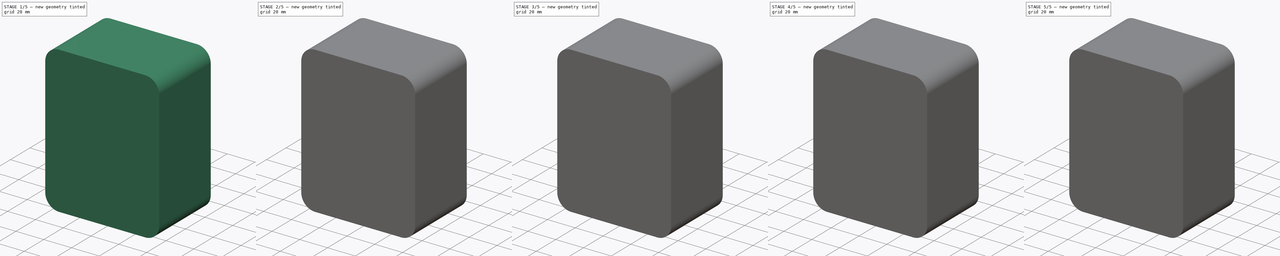
[diagram: build sequence overview — one tinted view per stage of 5, left to right]
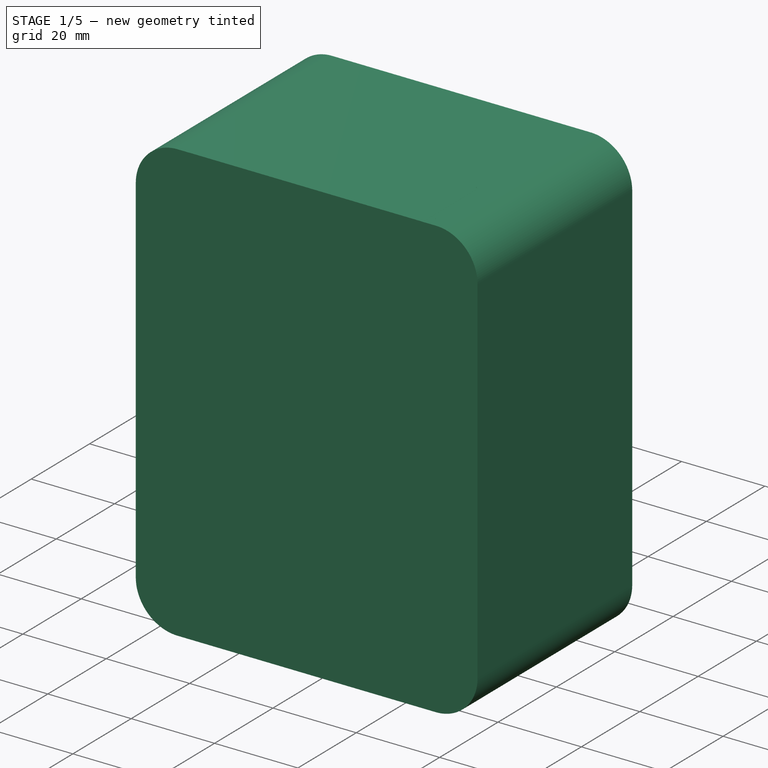
[diagram: stage 1 of 5 — iso view after this stage's code; geometry added in this stage tinted green]
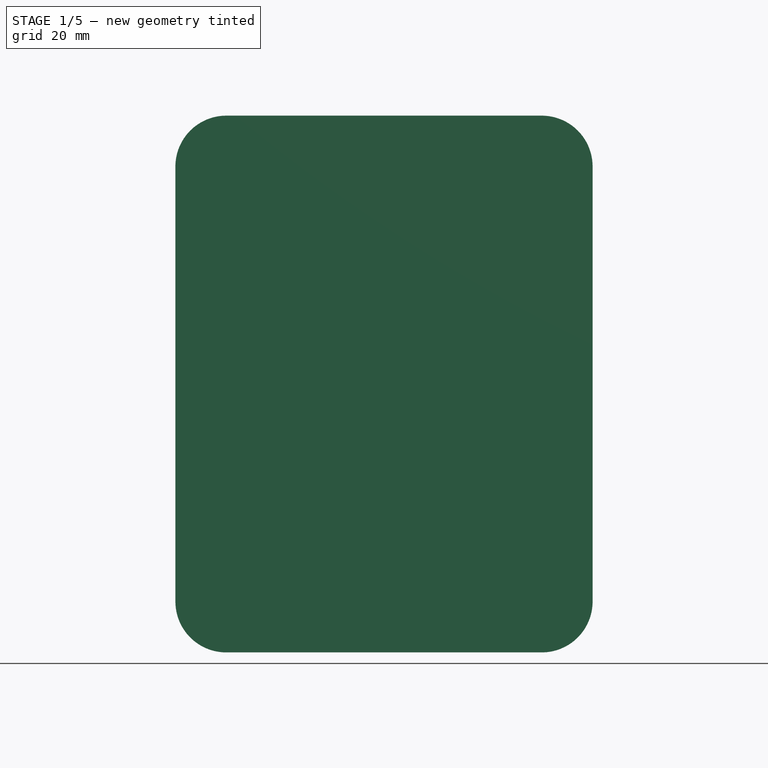
[diagram: stage 1 of 5 — front view after this stage's code; geometry added in this stage tinted green]
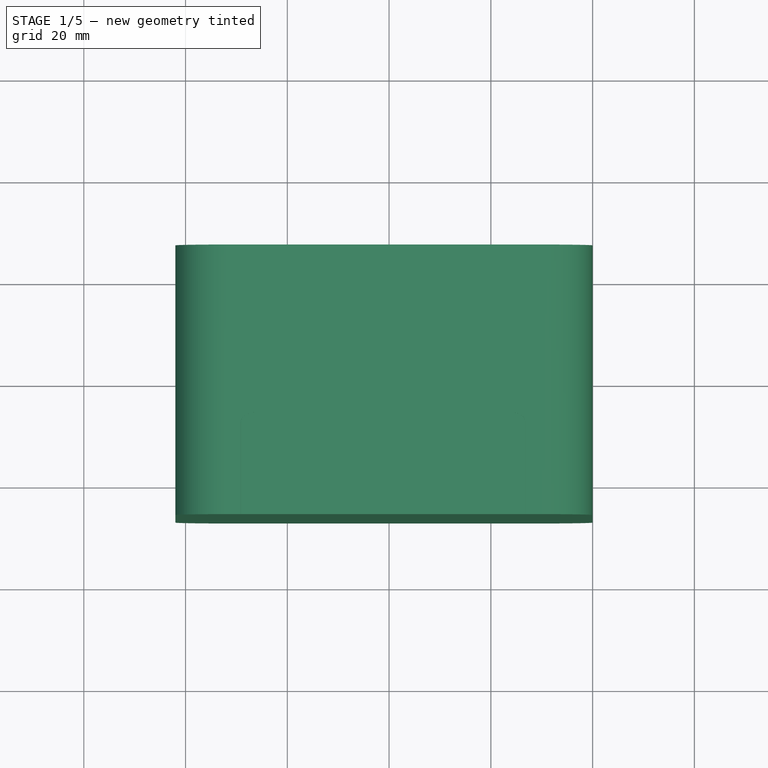
[diagram: stage 1 of 5 — top view after this stage's code; geometry added in this stage tinted green]
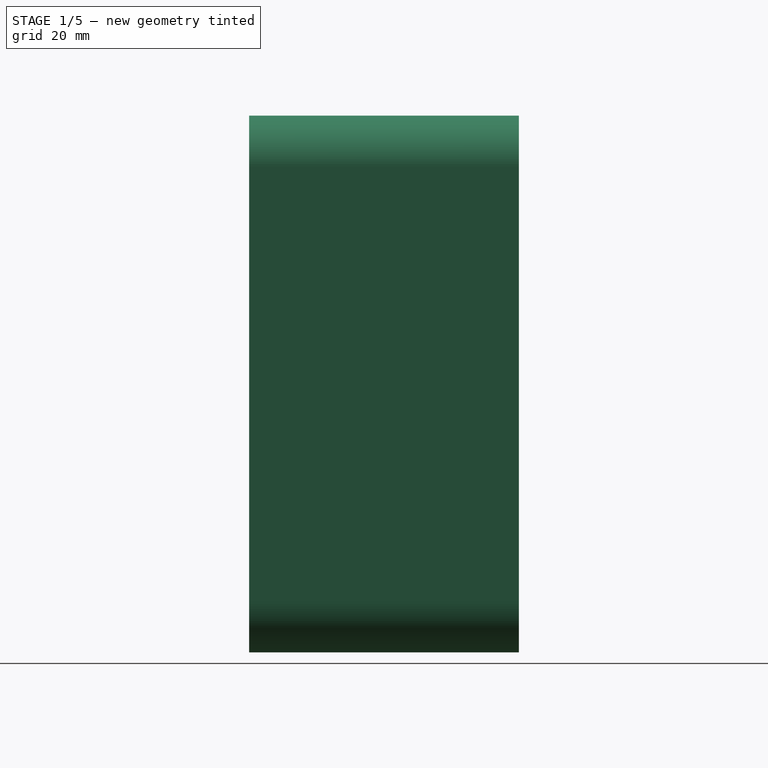
[diagram: stage 1 of 5 — right view after this stage's code; geometry added in this stage tinted green]
FCSTD DOCUMENT  (FreeCAD 0.20R29410 (Git))
Label: wearableV2_01_1O_2023
License: All rights reserved
LicenseURL: http://en.wikipedia.org/wiki/All_rights_reserved
objects: Part::MultiFuse×40, Part::Cylinder×30, Part::Feature×26, Part::Fillet×26, Part::Box×24, Sketcher::SketchObject×10, Part::Mirroring×9, Part::Cut×8, Part::Extrusion×8, Part::Cone×5, App::Part×2, PartDesign::Pad×2, PartDesign::Body×2, Part::FeaturePython×1
note: 193 computed .brp shape members not serialized (recipe doc carries the construction recipe); baked Part::Feature solids carry a one-line shape summary decoded from their .brp

FEATURE [Sketcher::SketchObject] Sketch005
  FullyConstrained = true
  sketch-geometry (6):
    g0: LineSegment StartX=57.7091 StartY=-19.3468 StartZ=0 EndX=57.7091 EndY=-22.3468 EndZ=0
    g1: LineSegment StartX=57.7091 StartY=-22.3468 StartZ=0 EndX=65.7091 EndY=-22.3468 EndZ=0
    g2: LineSegment StartX=65.7091 StartY=-22.3468 StartZ=0 EndX=65.7091 EndY=-10.3468 EndZ=0
    g3: LineSegment StartX=65.7091 StartY=-10.3468 StartZ=0 EndX=62.7091 EndY=-10.3468 EndZ=0
    g4: LineSegment StartX=62.7091 StartY=-10.3468 StartZ=0 EndX=62.7091 EndY=-19.3468 EndZ=0
    g5: LineSegment StartX=62.7091 StartY=-19.3468 StartZ=0 EndX=57.7091 EndY=-19.3468 EndZ=0
  constraints (18):
    c: Coincident(g0,g1)
    c: Horizontal(g1)
    c: Coincident(g1,g2)
    c: Vertical(g2)
    c: Coincident(g2,g3)
    c: Horizontal(g3)
    c: Coincident(g3,g4)
    c: Vertical(g4)
    c: Coincident(g4,g5)
    c: Coincident(g5,g0)
    c: Horizontal(g5)
    c: DistanceX(g0,g4) = 5
    c: Vertical(g0)
    c: DistanceY(g0,g0) = 3
    c: DistanceX(g0,g1) = 8
    c: DistanceY(g1,g2) = 12
    c: DistanceX(g1) = 65.7091
    c: DistanceY(g1) = -22.3468
FEATURE [Part::Extrusion] Extrude003
  Base = -> Sketch005
  Dir = (0,0,1)
  DirMode = 2
  FaceMakerClass = Part::FaceMakerBullseye
  LengthFwd = 10
  LengthRev = 0
  Placement = pos=(0,0,-14) rot=(0,0,1;0rad)
  Solid = true
  Symmetric = false
FEATURE [Part::Fillet] Fillet021
  Base = -> Extrude003
  Edges = 11 edges r=1: [Edge1,Edge2,Edge5,Edge7,Edge8,Edge10,Edge11,Edge13,Edge14,Edge16,Edge18]
  Placement = pos=(0,0,0.4) rot=(0,0,1;0rad)
FEATURE [Part::Mirroring] Part__Mirroring005  label="Fillet021 (Mirror #6)"
  Base = (0,0,0)
  Normal = (1,0,0)
  Placement = pos=(78,0,0.4) rot=(0,0,1;0rad)
  Source = -> Fillet021
FEATURE [Sketcher::SketchObject] Sketch006
  FullyConstrained = false
  Placement = pos=(0,0,0) rot=(1,0,0;1.5708rad)
  sketch-geometry (7):
    g0: ArcOfCircle CenterX=14.5039 CenterY=3.47044 CenterZ=0 NormalX=0 NormalY=0 NormalZ=1 AngleXU=0 Radius=3.3271 StartAngle=4.79301 EndAngle=7.86685
    g1: LineSegment StartX=14.4611 StartY=6.79726 StartZ=0 EndX=12.2529 EndY=6.79726 EndZ=0
    g2: ArcOfCircle CenterX=5.98953 CenterY=-9.01028 CenterZ=0 NormalX=0 NormalY=0 NormalZ=1 AngleXU=0 Radius=3.23718 StartAngle=1.74677 EndAngle=4.88836
    g3: LineSegment StartX=5.4228 StartY=-5.82309 StartZ=0 EndX=12.2529 EndY=-5.26761 EndZ=0
    g4: LineSegment StartX=12.2529 StartY=-5.26761 StartZ=0 EndX=12.2529 EndY=6.79726 EndZ=0
    g5: LineSegment StartX=6.55625 StartY=-12.1975 StartZ=0 EndX=14.7718 EndY=-12.1975 EndZ=0
    g6: LineSegment StartX=14.7718 StartY=-12.1975 StartZ=0 EndX=14.7718 EndY=0.154152 EndZ=0
  constraints (16):
    c: Coincident(g1,g0)
    c: Horizontal(g1)
    c: Angle(g2) = 3.14159
    c: DistanceX(g0) = 14.5039
    c: DistanceY(g0) = 3.47044
    c: Coincident(g3,g2)
    c: Coincident(g4,g3)
    c: Coincident(g4,g1)
    c: Vertical(g4)
    c: Coincident(g5,g2)
    c: Horizontal(g5)
    c: Coincident(g6,g5)
    c: Coincident(g6,g0)
    c: Vertical(g6)
    c: DistanceX(g2) = 5.98953
    c: DistanceY(g2) = -9.01028
FEATURE [Part::Extrusion] Extrude004
  Base = -> Sketch006
  Dir = (0,-1,-3e-16)
  DirMode = 2
  FaceMakerClass = Part::FaceMakerBullseye
  LengthFwd = 5
  LengthRev = 0
  Placement = pos=(0,-8,0) rot=(0,0,1;0rad)
  Solid = true
  Symmetric = false
FEATURE [Part::Mirroring] Part__Mirroring006  label="Extrude004 (Mirror #7)"
  Base = (0,0,0)
  Normal = (0,0,1)
  Placement = pos=(78,0,2e-15) rot=(0,1,0;3.14159rad)
  Source = -> Extrude004
FEATURE [Part::MultiFuse] Fusion040  label="c4Holds002"
  Shapes = -> [Part__Mirroring005,Extrude004]
FEATURE [Part::MultiFuse] Fusion041  label="c4Holds003"
  Shapes = -> [Part__Mirroring006,Fillet021]
FEATURE [Part::Box] Box021  label="Cube020"
  AttacherType = Attacher::AttachEngine3D
  Height = 4.5
  Length = 8
  Placement = pos=(62.75,24,-4.5) rot=(0,0,-1;1.5708rad)
  Width = 16
FEATURE [Part::Box] Box022  label="Cube021"
  AttacherType = Attacher::AttachEngine3D
  Height = 4.5
  Length = 8
  Placement = pos=(-0.75,24,-4.5) rot=(0,0,-1;1.5708rad)
  Width = 16
FEATURE [Part::MultiFuse] Fusion042  label="ipsHolds"
  Shapes = -> [Box021,Box022]
FEATURE [Sketcher::SketchObject] Sketch007
  FullyConstrained = false
  Placement = pos=(0,0,0) rot=(1,0,0;1.5708rad)
  sketch-geometry (5):
    g0: GeomPoint X=9.71668 Y=87.0086 Z=0
    g1: LineSegment StartX=10.8462 StartY=101.514 StartZ=0 EndX=8.84625 EndY=99.5143 EndZ=0
    g2: LineSegment StartX=8.84625 StartY=99.5143 StartZ=0 EndX=68.8462 EndY=99.5143 EndZ=0
    g3: LineSegment StartX=68.8462 StartY=99.5143 StartZ=0 EndX=66.8462 EndY=101.514 EndZ=0
    g4: LineSegment StartX=66.8462 StartY=101.514 StartZ=0 EndX=10.8462 EndY=101.514 EndZ=0
  constraints (18):
    c: Coincident(g2,g1)
    c: Horizontal(g2)
    c: Coincident(g3,g2)
    c: Coincident(g4,g3)
    c: Coincident(g1,g4)
    c: DistanceX(g1,g2) = 60
    c: DistanceX(g1,g3) = 56
    c: DistanceY(g2,g3) = 2
    c: DistanceX(g1,g1) = 2
    c: DistanceX(g0,g4) = 1.12957
    c: DistanceY(g0,g4) = 14.5057
    c: DistanceX(g1,g4) = 0
    c: DistanceY(g2,g4) = 2
    c: DistanceX(g2,g4) = -58
    c: DistanceY(g3,g4) = 2
    c: DistanceX(g3,g4) = -56
    c: DistanceX(g4,g4) = -56
    c: DistanceY(g4,g4) = 0
FEATURE [Part::Extrusion] Extrude005  label="cap002"
  Base = -> Sketch007
  Dir = (0,-1,-6e-16)
  DirMode = 2
  FaceMakerClass = Part::FaceMakerBullseye
  LengthFwd = 20
  LengthRev = 0
  Placement = pos=(0.5,-6.5,-11.5) rot=(0,0,1;0rad)
  Solid = true
  Symmetric = false
FEATURE [Part::Fillet] Fillet022
  Base = -> Extrude005
  Edges = 2 edges r=2: [Edge3,Edge9]
FEATURE [Part::Fillet] Fillet023  label="capCut"
  Base = -> Fillet022
  Edges = 2 edges r=0.5: [Edge3,Edge14]
  Placement = pos=(-0.5,-0.5,-0.25) rot=(0,0,1;0rad)
FEATURE [Part::Box] Box023  label="Cube022"
  AttacherType = Attacher::AttachEngine3D
  Height = 105.5
  Length = 82
  Placement = pos=(-2,-27,-15.75) rot=(0,0,1;0rad)
  Width = 3
FEATURE [Part::Fillet] Fillet024  label="top"
  Base = -> Box023
  Edges = 4 edges r=10: [Edge2,Edge4,Edge6,Edge8]
FEATURE [Sketcher::SketchObject] Sketch008
  FullyConstrained = false
  Placement = pos=(0,0,0) rot=(1,0,0;1.5708rad)
  sketch-geometry (5):
    g0: GeomPoint X=9.71668 Y=87.0086 Z=0
    g1: LineSegment StartX=10.8462 StartY=101.514 StartZ=0 EndX=8.84625 EndY=99.5143 EndZ=0
    g2: LineSegment StartX=8.84625 StartY=99.5143 StartZ=0 EndX=68.8462 EndY=99.5143 EndZ=0
    g3: LineSegment StartX=68.8462 StartY=99.5143 StartZ=0 EndX=66.8462 EndY=101.514 EndZ=0
    g4: LineSegment StartX=66.8462 StartY=101.514 StartZ=0 EndX=10.8462 EndY=101.514 EndZ=0
  constraints (18):
    c: Coincident(g2,g1)
    c: Horizontal(g2)
    c: Coincident(g3,g2)
    c: Coincident(g4,g3)
    c: Coincident(g1,g4)
    c: DistanceX(g1,g2) = 60
    c: DistanceX(g1,g3) = 56
    c: DistanceY(g2,g3) = 2
    c: DistanceX(g1,g1) = 2
    c: DistanceX(g0,g4) = 1.12957
    c: DistanceY(g0,g4) = 14.5057
    c: DistanceX(g1,g4) = 0
    c: DistanceY(g2,g4) = 2
    c: DistanceX(g2,g4) = -58
    c: DistanceY(g3,g4) = 2
    c: DistanceX(g3,g4) = -56
    c: DistanceX(g4,g4) = -56
    c: DistanceY(g4,g4) = 0
FEATURE [Part::Extrusion] Extrude006  label="cap003"
  Base = -> Sketch008
  Dir = (0,-1,-6e-16)
  DirMode = 2
  FaceMakerClass = Part::FaceMakerBullseye
  LengthFwd = 20
  LengthRev = 0
  Placement = pos=(0.5,-6.5,-11.5) rot=(0,0,1;0rad)
  Solid = true
  Symmetric = false
FEATURE [Part::Fillet] Fillet025
  Base = -> Extrude006
  Edges = 2 edges r=2: [Edge3,Edge9]
FEATURE [Part::Fillet] Fillet026  label="capCut001"
  Base = -> Fillet025
  Edges = 2 edges r=0.5: [Edge3,Edge14]
  Placement = pos=(-0.5,-0.5,-0.25) rot=(0,0,1;0rad)
FEATURE [Part::Box] Box024  label="Cube023"
  AttacherType = Attacher::AttachEngine3D
  Height = 105.5
  Length = 82
  Placement = pos=(80,26,-15.75) rot=(0,0,1;3.14159rad)
  Width = 50.5
FEATURE [Part::Box] Box025  label="Cube024"
  AttacherType = Attacher::AttachEngine3D
  Height = 101.5
  Length = 78
  Placement = pos=(78,24,-13.75) rot=(0,0,1;3.14159rad)
  Width = 50.5
FEATURE [Part::Fillet] Fillet027  label="outerBox001"
  Base = -> Box024
  Edges = 4 edges r=10: [Edge2,Edge4,Edge6,Edge8]
FEATURE [Part::Fillet] Fillet028  label="innerBoxCut002"
  Base = -> Box025
  Edges = 4 edges r=10: [Edge2,Edge4,Edge6,Edge8]
FEATURE [Part::Cut] Cut007  label="outerShellBottomCut"
  Base = -> Fillet027
  Tool = -> Fillet028
FEATURE [Part::Feature] Part__Feature043  label="m3Nut001"
  Placement = pos=(6,-20.7844,81.9658) rot=(1,0,0;1.5708rad)
  shape: bbox 6.352 x 2.188 x 6.352 mm, 35 faces (baked)
FEATURE [Part::Cone] Cone001
  Angle = 360
  AttacherType = Attacher::AttachEngine3D
  Height = 8
  Placement = pos=(6,-24.5,-9) rot=(0,0.707107,0.707107;3.14159rad)
  Radius1 = 6
  Radius2 = 4
FEATURE [Part::Cone] Cone002
  Angle = 360
  AttacherType = Attacher::AttachEngine3D
  Height = 8
  Placement = pos=(6,-24.5,82) rot=(0,0.707107,0.707107;3.14159rad)
  Radius1 = 6
  Radius2 = 4
FEATURE [Part::Cone] Cone003
  Angle = 360
  AttacherType = Attacher::AttachEngine3D
  Height = 8
  Placement = pos=(72,-24.5,-9) rot=(0,0.707107,0.707107;3.14159rad)
  Radius1 = 6
  Radius2 = 4
FEATURE [Part::Cone] Cone004
  Angle = 360
  AttacherType = Attacher::AttachEngine3D
  Height = 8
  Placement = pos=(72,-24.5,82) rot=(0,0.707107,0.707107;3.14159rad)
  Radius1 = 6
  Radius2 = 4
FEATURE [Part::MultiFuse] Fusion043  label="m3NutsHolds"
  Shapes = -> [Cone001,Cone002,Cone003,Cone004]
FEATURE [Part::Feature] Part__Feature044  label="m3Nut002"
  Placement = pos=(72,-20.7844,81.9658) rot=(1,0,0;1.5708rad)
  shape: bbox 6.352 x 2.188 x 6.352 mm, 35 faces (baked)
FEATURE [Part::Feature] Part__Feature045  label="m3Nut003"
  Placement = pos=(72,-20.7844,-9.03425) rot=(1,0,0;1.5708rad)
  shape: bbox 6.352 x 2.188 x 6.352 mm, 35 faces (baked)
FEATURE [Part::Feature] Part__Feature046  label="m3Nut004"
  Placement = pos=(6,-20.7844,-9.03425) rot=(1,0,0;1.5708rad)
  shape: bbox 6.352 x 2.188 x 6.352 mm, 35 faces (baked)
FEATURE [Sketcher::SketchObject] Sketch009
  FullyConstrained = true
  sketch-geometry (10):
    g0: LineSegment StartX=71 StartY=-3 StartZ=0 EndX=71 EndY=-22 EndZ=0
    g1: LineSegment StartX=71 StartY=-22 StartZ=0 EndX=66 EndY=-22 EndZ=0
    g2: LineSegment StartX=66 StartY=-22 StartZ=0 EndX=66 EndY=-3 EndZ=0
    g3: LineSegment StartX=66 StartY=-3 StartZ=0 EndX=12 EndY=-3 EndZ=0
    g4: LineSegment StartX=12 StartY=-3 StartZ=0 EndX=12 EndY=-22 EndZ=0
    g5: LineSegment StartX=12 StartY=-22 StartZ=0 EndX=7 EndY=-22 EndZ=0
    g6: LineSegment StartX=7 StartY=-3 StartZ=0 EndX=7 EndY=-22 EndZ=0
    g7: ArcOfCircle CenterX=12 CenterY=-3 CenterZ=0 NormalX=0 NormalY=0 NormalZ=1 AngleXU=0 Radius=5 StartAngle=1.5708 EndAngle=3.14159
    g8: ArcOfCircle CenterX=66 CenterY=-3 CenterZ=0 NormalX=0 NormalY=0 NormalZ=1 AngleXU=0 Radius=5 StartAngle=-2.7e-15 EndAngle=1.5708
    g9: LineSegment StartX=12 StartY=2 StartZ=0 EndX=66 EndY=2 EndZ=0
  constraints (30):
    c: Vertical(g0)
    c: Coincident(g1,g0)
    c: Horizontal(g1)
    c: Coincident(g2,g1)
    c: Vertical(g2)
    c: Horizontal(g3)
    c: Vertical(g4)
    c: Horizontal(g5)
    c: Coincident(g6,g5)
    c: Vertical(g6)
    c: Coincident(g5,g4)
    c: DistanceX(g-1,g6) = 7
    c: DistanceX(g6,g3) = 5
    c: Coincident(g4,g3)
    c: Coincident(g3,g2)
    c: DistanceY(g5,g6) = 19
    c: DistanceY(g1,g2) = 19
    c: Coincident(g7,g3)
    c: Coincident(g7,g6)
    c: Coincident(g8,g2)
    c: Angle(g7) = 1.5708
    c: Angle(g8) = 1.5708
    c: Coincident(g9,g7)
    c: Coincident(g9,g8)
    c: Horizontal(g9)
    c: DistanceX(g3,g2) = 54
    c: DistanceX(g8,g2) = 0
    c: DistanceY(g3) = -3
    c: DistanceY(g6,g3) = 0
    c: Coincident(g0,g8)
FEATURE [Part::Extrusion] Extrude007
  Base = -> Sketch009
  Dir = (0,0,1)
  DirMode = 2
  FaceMakerClass = Part::FaceMakerBullseye
  LengthFwd = 3
  LengthRev = 0
  Placement = pos=(0,0,84.75) rot=(0,0,1;0rad)
  Solid = true
  Symmetric = false
FEATURE [Part::Fillet] Fillet029  label="capHold"
  Base = -> Extrude007
  Edges = 19 edges r=1: [Edge2,Edge3,Edge5,Edge6,Edge8,Edge9,Edge10,Edge11,Edge12,Edge13,Edge14,Edge15,Edge16,Edge17,Edge18,Edge21,Edge24,Edge27,Edge29]
FEATURE [Part::Feature] Part__Feature047  label="m3Nut005"
  Placement = pos=(72,-13.2844,81.9658) rot=(1,0,0;1.5708rad)
  shape: bbox 6.352 x 2.188 x 6.352 mm, 35 faces (baked)
FEATURE [Part::FeaturePython] Clone  label="m3NutCuts"  # Draft clone (typed FeaturePython)
  AttacherType = Attacher::AttachEngine3D
  Fuse = false
  Objects = -> [Part__Feature047]
  Placement = pos=(72,-13.2844,81.9658) rot=(1,0,0;1.5708rad)
  Scale = (1.05,1.05,1.05)
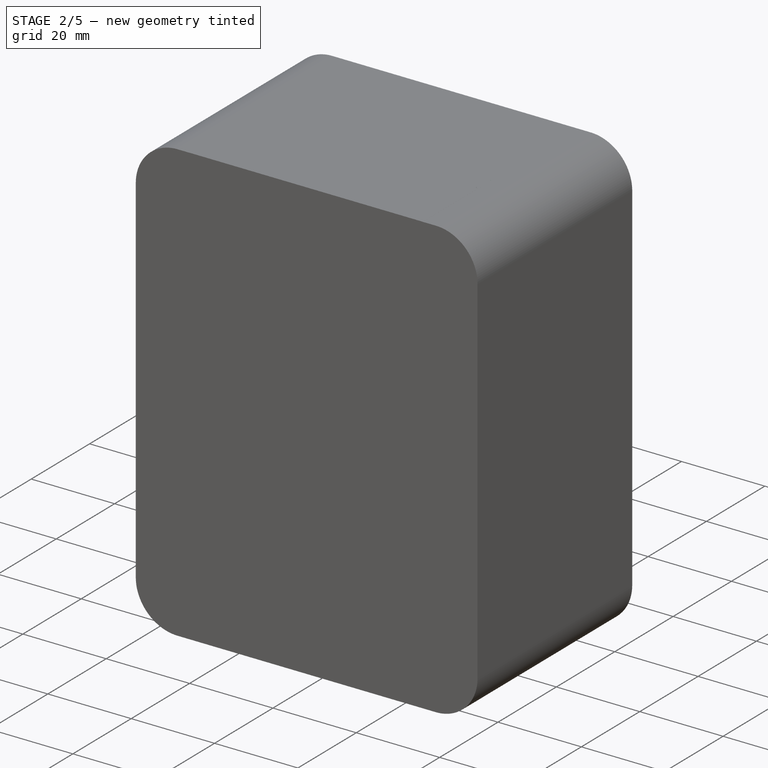
[diagram: stage 2 of 5 — iso view after this stage's code; geometry added in this stage tinted green]
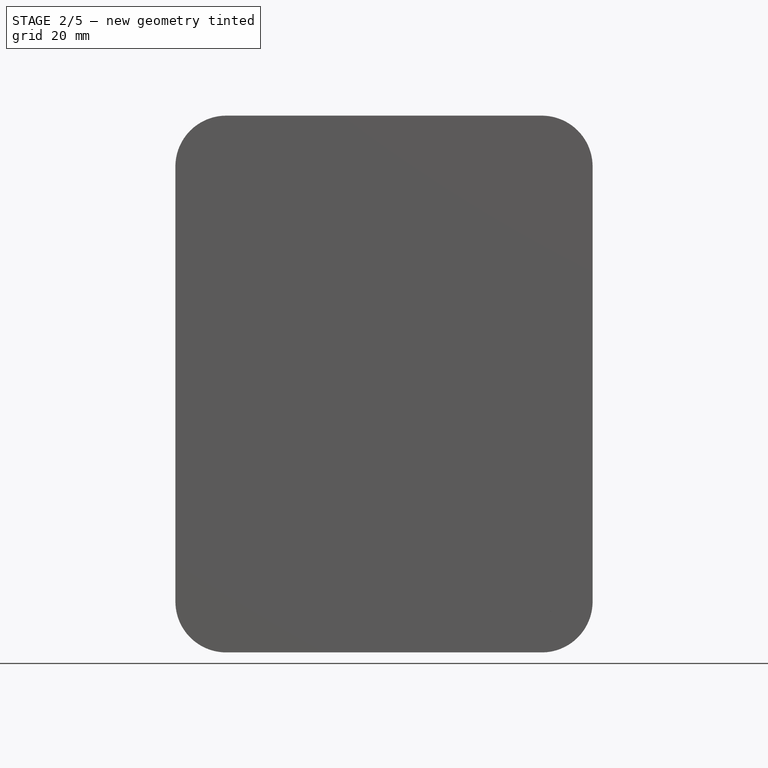
[diagram: stage 2 of 5 — front view after this stage's code; geometry added in this stage tinted green]
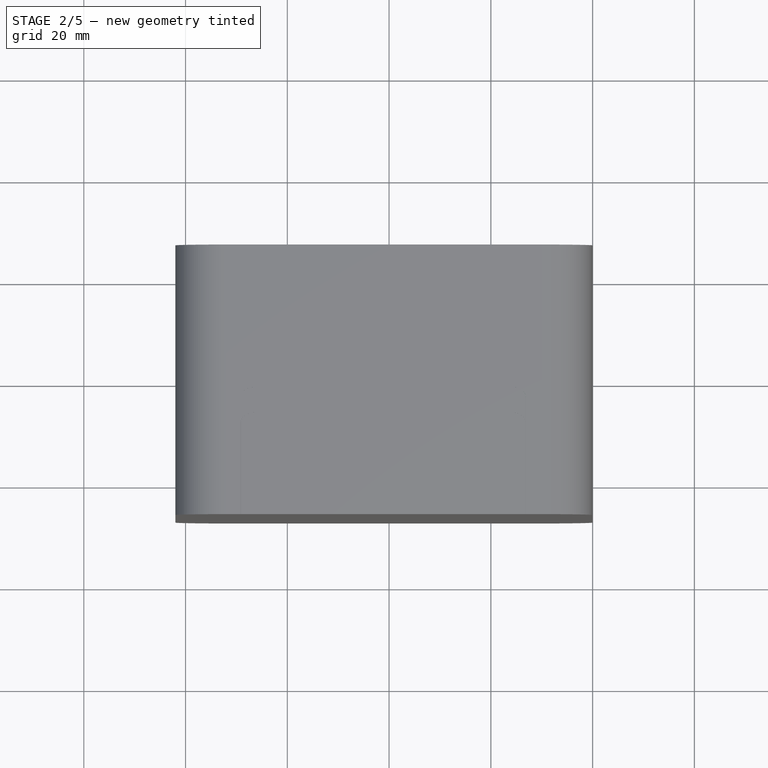
[diagram: stage 2 of 5 — top view after this stage's code; geometry added in this stage tinted green]
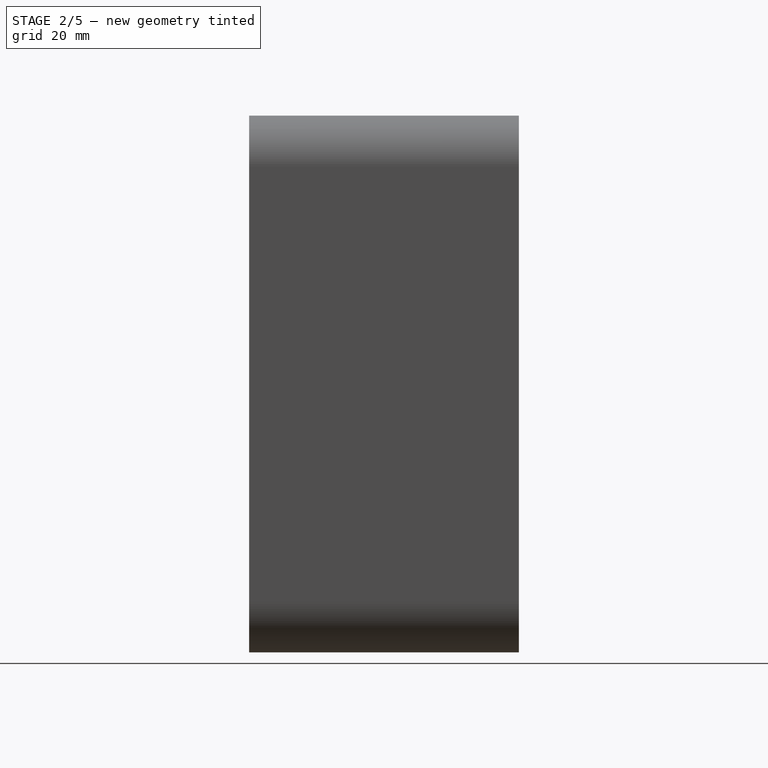
[diagram: stage 2 of 5 — right view after this stage's code; geometry added in this stage tinted green]
FEATURE [Part::Cylinder] Cylinder010
  Angle = 360
  AttacherType = Attacher::AttachEngine3D
  FirstAngle = 0
  Height = 10
  Placement = pos=(2.54,0,2.54) rot=(1,0,0;1.5708rad)
  Radius = 1
  SecondAngle = 0
FEATURE [Part::Cylinder] Cylinder011
  Angle = 360
  AttacherType = Attacher::AttachEngine3D
  FirstAngle = 0
  Height = 10
  Placement = pos=(2.54,0,15.24) rot=(1,0,0;1.5708rad)
  Radius = 1
  SecondAngle = 0
FEATURE [Part::MultiFuse] Fusion015
  Placement = pos=(20.32,0,0) rot=(0,0,1;0rad)
  Shapes = -> [Cylinder011,Cylinder010]
FEATURE [Part::Box] Box015  label="Cube014"
  AttacherType = Attacher::AttachEngine3D
  Height = 105.5
  Length = 82
  Placement = pos=(80,26,-15.75) rot=(0,0,1;3.14159rad)
  Width = 50.5
FEATURE [Part::Fillet] Fillet015  label="outerBox"
  Base = -> Box015
  Edges = 4 edges r=10: [Edge2,Edge4,Edge6,Edge8]
FEATURE [Sketcher::SketchObject] Sketch
  FullyConstrained = false
  Placement = pos=(0,0,0) rot=(1,0,0;1.5708rad)
  sketch-geometry (5):
    g0: GeomPoint X=9.71668 Y=87.0086 Z=0
    g1: LineSegment StartX=10.8462 StartY=101.514 StartZ=0 EndX=8.84625 EndY=99.5143 EndZ=0
    g2: LineSegment StartX=8.84625 StartY=99.5143 StartZ=0 EndX=68.8462 EndY=99.5143 EndZ=0
    g3: LineSegment StartX=68.8462 StartY=99.5143 StartZ=0 EndX=66.8462 EndY=101.514 EndZ=0
    g4: LineSegment StartX=66.8462 StartY=101.514 StartZ=0 EndX=10.8462 EndY=101.514 EndZ=0
  constraints (18):
    c: Coincident(g2,g1)
    c: Horizontal(g2)
    c: Coincident(g3,g2)
    c: Coincident(g4,g3)
    c: Coincident(g1,g4)
    c: DistanceX(g1,g2) = 60
    c: DistanceX(g1,g3) = 56
    c: DistanceY(g2,g3) = 2
    c: DistanceX(g1,g1) = 2
    c: DistanceX(g0,g4) = 1.12957
    c: DistanceY(g0,g4) = 14.5057
    c: DistanceX(g1,g4) = 0
    c: DistanceY(g2,g4) = 2
    c: DistanceX(g2,g4) = -58
    c: DistanceY(g3,g4) = 2
    c: DistanceX(g3,g4) = -56
    c: DistanceX(g4,g4) = -56
    c: DistanceY(g4,g4) = 0
FEATURE [Part::Extrusion] Extrude  label="cap"
  Base = -> Sketch
  Dir = (0,-1,2e-16)
  DirMode = 2
  FaceMakerClass = Part::FaceMakerBullseye
  LengthFwd = 25
  LengthRev = 0
  Placement = pos=(0.5,-6.5,-11.5) rot=(0,0,1;0rad)
  Solid = true
  Symmetric = false
FEATURE [Part::Fillet] Fillet016
  Base = -> Extrude
  Edges = 2 edges r=2: [Edge3,Edge9]
FEATURE [Part::Fillet] Fillet017  label="cap001"
  Base = -> Fillet016
  Edges = 2 edges r=0.5: [Edge3,Edge14]
  Placement = pos=(-0.5,4.5,-0.26) rot=(0,0,1;0rad)
FEATURE [Part::Box] Box016  label="Cube015"
  AttacherType = Attacher::AttachEngine3D
  Height = 101.5
  Length = 78
  Placement = pos=(78,24,-13.75) rot=(0,0,1;3.14159rad)
  Width = 50.5
FEATURE [Part::Fillet] Fillet018  label="innerBoxCut001"
  Base = -> Box016
  Edges = 4 edges r=10: [Edge2,Edge4,Edge6,Edge8]
FEATURE [Part::Cut] Cut006  label="outerShellBottom"
  Base = -> Fillet015
  Tool = -> Fillet018
FEATURE [Part::Feature] Part__Feature034  label="m3Nut"
  Placement = pos=(6,-13.2844,81.9658) rot=(1,0,0;1.5708rad)
  shape: bbox 6.352 x 2.188 x 6.352 mm, 35 faces (baked)
FEATURE [Part::Feature] Part__Feature039  label="m3s45s"
  Placement = pos=(72,4,-9) rot=(0,0.707107,0.707107;3.14159rad)
  shape: bbox 5.501 x 48.04 x 5.501 mm, 104 faces (baked)
FEATURE [Part::Feature] Part__Feature040  label="m3s45s001"
  Placement = pos=(6,4,-9) rot=(0,0.707107,0.707107;3.14159rad)
  shape: bbox 5.501 x 48.04 x 5.501 mm, 104 faces (baked)
FEATURE [Part::Feature] Part__Feature041  label="m3s45s002"
  Placement = pos=(6,4,82) rot=(0,0.707107,0.707107;3.14159rad)
  shape: bbox 5.501 x 48.04 x 5.501 mm, 104 faces (baked)
FEATURE [Part::Feature] Part__Feature042  label="m3s45s003"
  Placement = pos=(72,4,82) rot=(0,0.707107,0.707107;3.14159rad)
  shape: bbox 5.501 x 48.04 x 5.501 mm, 104 faces (baked)
FEATURE [Part::MultiFuse] Fusion036  label="m3s45s004"
  Placement = pos=(0,-2.5,0) rot=(0,0,1;0rad)
  Shapes = -> [Part__Feature039,Part__Feature040,Part__Feature041,Part__Feature042]
FEATURE [Sketcher::SketchObject] Sketch001
  FullyConstrained = false
  MapMode = 5
  Placement = pos=(0,0,0) rot=(1,0,0;1.5708rad)
  Support = -> [XZ_Plane002]
  sketch-geometry (5):
    g0: LineSegment StartX=0 StartY=77.5 StartZ=0 EndX=10.75 EndY=77.5 EndZ=0
    g1: LineSegment StartX=10.75 StartY=77.5 StartZ=0 EndX=10.75 EndY=74.234 EndZ=0
    g2: ArcOfCircle CenterX=15.5057 CenterY=59.9075 CenterZ=0 NormalX=0 NormalY=0 NormalZ=1 AngleXU=0 Radius=15.0952 StartAngle=1.8913 EndAngle=3.06915
    g3: LineSegment StartX=0 StartY=77.5 StartZ=0 EndX=0 EndY=61 EndZ=0
    g4: LineSegment StartX=0 StartY=61 StartZ=0 EndX=0.45 EndY=61 EndZ=0
  constraints (14):
    c: Coincident(g4,g3)
    c: Vertical(g3)
    c: Horizontal(g4)
    c: Horizontal(g0)
    c: Vertical(g1)
    c: DistanceY(g3,g0) = 16.5
    c: DistanceX(g0,g0) = 10.75
    c: DistanceX(g3,g2) = 0.45
    c: DistanceY(g-1,g3) = 61
    c: DistanceX(g3,g-1) = 0
    c: Coincident(g2,g4)
    c: Coincident(g2,g1)
    c: Coincident(g1,g0)
    c: Coincident(g0,g3)
FEATURE [PartDesign::Pad] Pad
  Direction = (0,-1,2e-16)
  Length = 32
  Length2 = 10
  Placement = pos=(0,0,0) rot=(1,0,0;1.5708rad)
  Profile = -> Sketch001
  ReferenceAxis = -> Sketch001 [N_Axis]
  Type = 0
FEATURE [PartDesign::Body] Body  label="batteryHold"
  Group = -> [Sketch001,Pad]
  Origin = -> Origin002
  Placement = pos=(0,24,0) rot=(0,0,1;0rad)
  Tip = -> Pad
FEATURE [Part::Mirroring] Part__Mirroring002  label="batteryHold (Mirror #3)"
  Base = (0,0,0)
  Normal = (1,0,0)
  Placement = pos=(78,0,0) rot=(0,0,1;0rad)
  Source = -> Body
FEATURE [Sketcher::SketchObject] Sketch002
  FullyConstrained = false
  MapMode = 5
  Placement = pos=(0,0,0) rot=(1,0,0;1.5708rad)
  Support = -> [XZ_Plane003]
  sketch-geometry (5):
    g0: LineSegment StartX=0 StartY=77.5 StartZ=0 EndX=10.75 EndY=77.5 EndZ=0
    g1: LineSegment StartX=10.75 StartY=77.5 StartZ=0 EndX=10.75 EndY=74.234 EndZ=0
    g2: ArcOfCircle CenterX=15.5057 CenterY=59.9075 CenterZ=0 NormalX=0 NormalY=0 NormalZ=1 AngleXU=0 Radius=15.0952 StartAngle=1.8913 EndAngle=3.06915
    g3: LineSegment StartX=0 StartY=77.5 StartZ=0 EndX=0 EndY=61 EndZ=0
    g4: LineSegment StartX=0 StartY=61 StartZ=0 EndX=0.45 EndY=61 EndZ=0
  constraints (14):
    c: Coincident(g4,g3)
    c: Vertical(g3)
    c: Horizontal(g4)
    c: Horizontal(g0)
    c: Vertical(g1)
    c: DistanceY(g3,g0) = 16.5
    c: DistanceX(g0,g0) = 10.75
    c: DistanceX(g3,g2) = 0.45
    c: DistanceY(g-1,g3) = 61
    c: DistanceX(g3,g-1) = 0
    c: Coincident(g2,g4)
    c: Coincident(g2,g1)
    c: Coincident(g1,g0)
    c: Coincident(g0,g3)
FEATURE [PartDesign::Pad] Pad001
  Direction = (0,-1,-2e-16)
  Length = 15
  Length2 = 10
  Placement = pos=(0,0,0) rot=(1,0,0;1.5708rad)
  Profile = -> Sketch002
  ReferenceAxis = -> Sketch002 [N_Axis]
  Type = 0
FEATURE [PartDesign::Body] Body001  label="batteryHold001"
  Group = -> [Sketch002,Pad001]
  Origin = -> Origin003
  Placement = pos=(0,24,0) rot=(0,0,1;0rad)
  Tip = -> Pad001
FEATURE [Part::Mirroring] Part__Mirroring003  label="batteryHold001 (Mirror #4)"
  Base = (0,0,0)
  Normal = (0,0,1)
  Placement = pos=(0,0,74.5) rot=(0,0,1;0rad)
  Source = -> Body001
FEATURE [Part::Mirroring] Part__Mirroring004  label="batteryHold001 (Mirror #5)"
  Base = (0,0,0)
  Normal = (1,0,0)
  Placement = pos=(78,0,0) rot=(0,0,1;0rad)
  Source = -> Part__Mirroring003
FEATURE [Sketcher::SketchObject] Sketch003
  FullyConstrained = false
  Placement = pos=(0,0,0) rot=(1,0,0;1.5708rad)
  sketch-geometry (10):
    g0: LineSegment StartX=4.54947 StartY=57.2679 StartZ=0 EndX=0.883944 EndY=66.2686 EndZ=0
    g1: LineSegment StartX=4.54947 StartY=57.2679 StartZ=0 EndX=15.7468 EndY=57.2679 EndZ=0
    g2: ArcOfCircle CenterX=15.3573 CenterY=61.5 CenterZ=0 NormalX=0 NormalY=0 NormalZ=1 AngleXU=0 Radius=4.25 StartAngle=4.80417 EndAngle=7.22437
    g3: LineSegment StartX=17.8598 StartY=64.9351 StartZ=0 EndX=10.3641 EndY=71.1208 EndZ=0
    g4: LineSegment StartX=0.883944 StartY=78.6544 StartZ=0 EndX=0.883944 EndY=66.2686 EndZ=0
    g5: LineSegment StartX=10.3641 StartY=71.1208 StartZ=0 EndX=10.3641 EndY=84.4107 EndZ=0
    g6: LineSegment StartX=10.3641 StartY=84.4107 StartZ=0 EndX=7.98639 EndY=84.4107 EndZ=0
    g7: ArcOfCircle CenterX=7.97265 CenterY=85.778 CenterZ=0 NormalX=0 NormalY=0 NormalZ=1 AngleXU=0 Radius=1.36738 StartAngle=3.03277 EndAngle=4.72244
    g8: ArcOfCircle CenterX=9.10309 CenterY=79.0296 CenterZ=0 NormalX=0 NormalY=0 NormalZ=1 AngleXU=0 Radius=8.22771 StartAngle=1.87822 EndAngle=3.18722
    g9: LineSegment StartX=6.61336 StartY=85.9265 StartZ=0 EndX=6.61336 EndY=86.8716 EndZ=0
  constraints (19):
    c: Coincident(g1,g0)
    c: Horizontal(g1)
    c: Coincident(g2,g1)
    c: Coincident(g3,g2)
    c: Coincident(g4,g0)
    c: Vertical(g4)
    c: Equal(g0,g3)
    c: DistanceY(g2) = 61.5
    c: Radius(g2) = 4.25
    c: Coincident(g5,g3)
    c: Vertical(g5)
    c: Coincident(g6,g5)
    c: Horizontal(g6)
    c: Coincident(g7,g6)
    c: Coincident(g8,g4)
    c: Angle(g8) = 1.309
    c: Coincident(g9,g7)
    c: Coincident(g9,g8)
    c: Vertical(g9)
FEATURE [Part::Extrusion] Extrude001  label="c4Holds"
  Base = -> Sketch003
  Dir = (0,-1,2e-16)
  DirMode = 2
  FaceMakerClass = Part::FaceMakerBullseye
  LengthFwd = 4
  LengthRev = 0
  Placement = pos=(0,-8,0) rot=(0,0,1;0rad)
  Solid = true
  Symmetric = false
FEATURE [Sketcher::SketchObject] Sketch004
  FullyConstrained = false
  Placement = pos=(0,0,0) rot=(1,0,0;1.5708rad)
  sketch-geometry (10):
    g0: LineSegment StartX=62.5867 StartY=65.3514 StartZ=0 EndX=65.5388 EndY=65.3514 EndZ=0
    g1: LineSegment StartX=65.5388 StartY=65.3514 StartZ=0 EndX=69.0019 EndY=79 EndZ=0
    g2: LineSegment StartX=76.9995 StartY=79 StartZ=0 EndX=76.9995 EndY=71.157 EndZ=0
    g3: LineSegment StartX=76.9995 StartY=71.157 StartZ=0 EndX=65.548 EndY=57.9699 EndZ=0
    g4: ArcOfCircle CenterX=63.667 CenterY=61.5 CenterZ=0 NormalX=0 NormalY=0 NormalZ=1 AngleXU=0 Radius=4 StartAngle=1.84425 EndAngle=5.20196
    g5: ArcOfCircle CenterX=69.0019 CenterY=79 CenterZ=0 NormalX=0 NormalY=0 NormalZ=1 AngleXU=0 Radius=7.99759 StartAngle=-9e-16 EndAngle=1.27409
    g6: ArcOfCircle CenterX=70.0211 CenterY=85.7541 CenterZ=0 NormalX=0 NormalY=0 NormalZ=1 AngleXU=0 Radius=1.31913 StartAngle=4.71239 EndAngle=6.28319
    g7: LineSegment StartX=69.0019 StartY=79 StartZ=0 EndX=69.0019 EndY=84.3966 EndZ=0
    g8: LineSegment StartX=70.0211 StartY=84.435 StartZ=0 EndX=69.0019 EndY=84.3966 EndZ=0
    g9: LineSegment StartX=71.3402 StartY=85.7541 StartZ=0 EndX=71.3402 EndY=86.6481 EndZ=0
  constraints (22):
    c: Horizontal(g0)
    c: Coincident(g1,g0)
    c: Vertical(g2)
    c: Coincident(g3,g2)
    c: Coincident(g4,g3)
    c: Radius(g4) = 4
    c: Coincident(g0,g4)
    c: DistanceX(g4) = 63.667
    c: DistanceY(g4) = 61.5
    c: DistanceY(g1) = 79
    c: DistanceX(g2) = 76.9995
    c: DistanceY(g2) = 79
    c: Coincident(g5,g1)
    c: Coincident(g5,g2)
    c: Angle(g5) = 1.27409
    c: Coincident(g7,g1)
    c: Vertical(g7)
    c: Coincident(g8,g6)
    c: Coincident(g8,g7)
    c: Coincident(g9,g6)
    c: Vertical(g9)
    c: Coincident(g5,g9)
FEATURE [Part::Extrusion] Extrude002  label="c4Holds001"
  Base = -> Sketch004
  Dir = (0,-1,2e-16)
  DirMode = 2
  FaceMakerClass = Part::FaceMakerBullseye
  LengthFwd = 4
  LengthRev = 0
  Placement = pos=(0,-8,0) rot=(0,0,1;0rad)
  Solid = true
  Symmetric = false
FEATURE [Part::Box] Box019  label="Cube018"
  AttacherType = Attacher::AttachEngine3D
  Height = 4
  Length = 5.25
  Placement = pos=(15.75,24,-13.75) rot=(0,0,-1;1.5708rad)
  Width = 4.5
FEATURE [Part::Fillet] Fillet019  label="IPS insides001"
  Base = -> Box019
  Edges = 1 edges r=1.75: [Edge7]
FEATURE [Part::Box] Box020  label="Cube019"
  AttacherType = Attacher::AttachEngine3D
  Height = 4
  Length = 4.25
  Placement = pos=(15.75,23,-13.75) rot=(0,0,-1;1.5708rad)
  Width = 4.5
FEATURE [Part::Fillet] Fillet020  label="IPS insides"
  Base = -> Box020
  Edges = 1 edges r=1.75: [Edge7]
  Placement = pos=(78,4,0) rot=(0,0,1;3.14159rad)
FEATURE [Part::Cylinder] Cylinder031  label="m3Hold"
  Angle = 90
  AttacherType = Attacher::AttachEngine3D
  FirstAngle = 0
  Height = 32.5
  Placement = pos=(9,24.5,-6) rot=(0,0.707107,-0.707107;3.14159rad)
  Radius = 9
  SecondAngle = 0
FEATURE [Part::Cone] Cone
  Angle = 360
  AttacherType = Attacher::AttachEngine3D
  Height = 11
  Placement = pos=(6,24,-9) rot=(1,0,0;1.5708rad)
  Radius1 = 6
  Radius2 = 2.8
FEATURE [Part::MultiFuse] Fusion037  label="m3Hold001"
  Shapes = -> [Cone,Cylinder031]
FEATURE [Part::Mirroring] Part__Mirroring007  label="m3Hold001 (Mirror #8)"
  Base = (0,0,0)
  Normal = (1,0,0)
  Placement = pos=(78,0,0) rot=(0,0,1;0rad)
  Source = -> Fusion037
FEATURE [Part::MultiFuse] Fusion038
  Shapes = -> [Part__Mirroring007,Fusion037]
FEATURE [Part::Mirroring] Part__Mirroring008  label="Fusion038 (Mirror #9)"
  Base = (0,0,0)
  Normal = (0,0,1)
  Placement = pos=(0,0,73) rot=(0,0,1;0rad)
  Source = -> Fusion038
FEATURE [Part::MultiFuse] Fusion039  label="Stands"
  Shapes = -> [Part__Mirroring008,Fusion038]
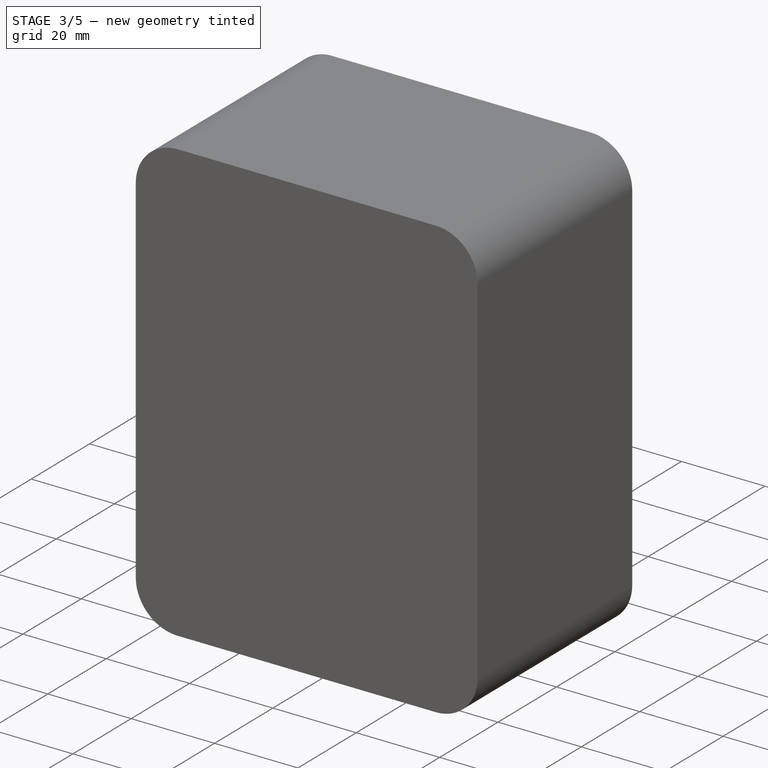
[diagram: stage 3 of 5 — iso view after this stage's code; geometry added in this stage tinted green]
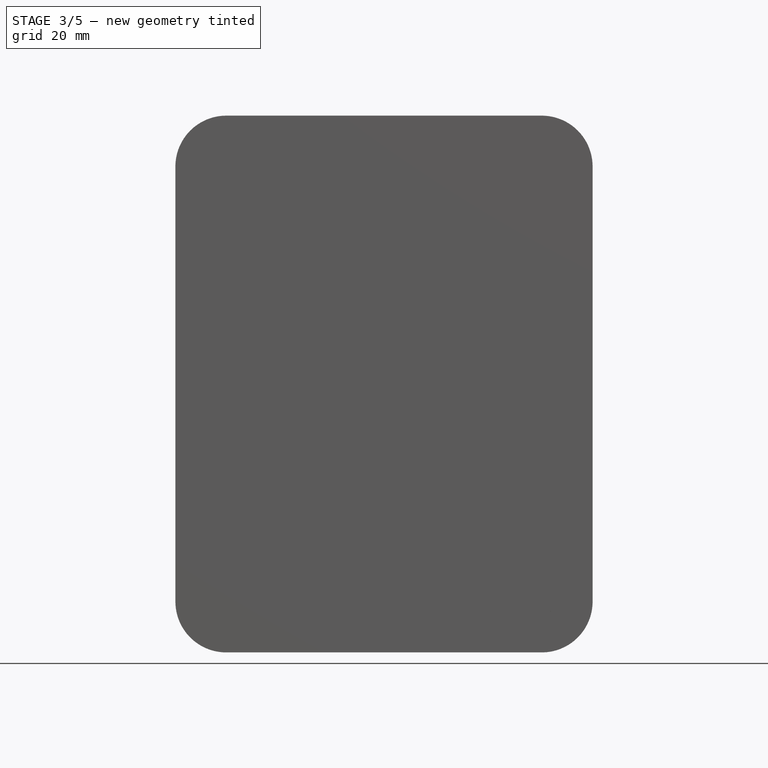
[diagram: stage 3 of 5 — front view after this stage's code; geometry added in this stage tinted green]
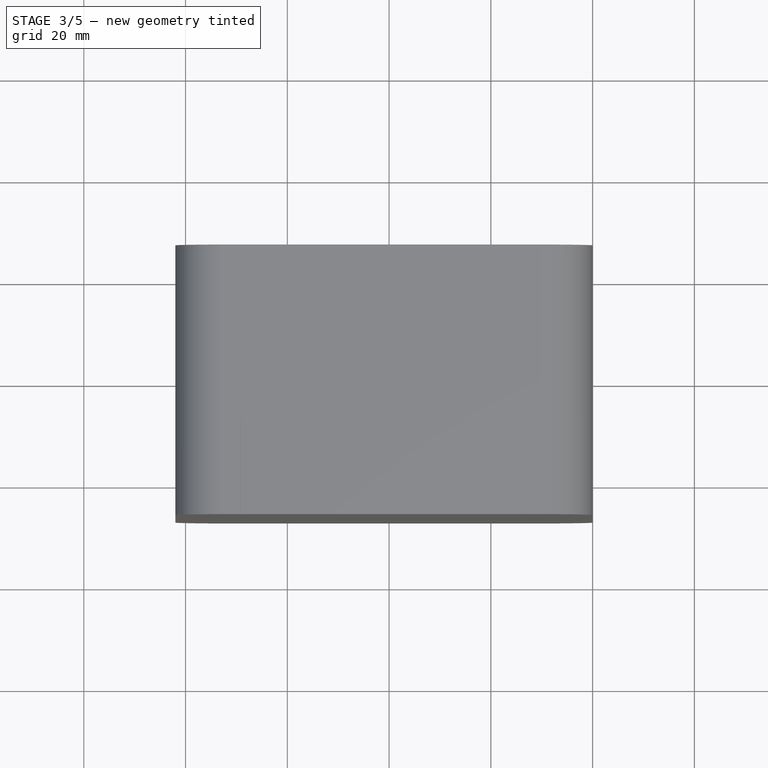
[diagram: stage 3 of 5 — top view after this stage's code; geometry added in this stage tinted green]
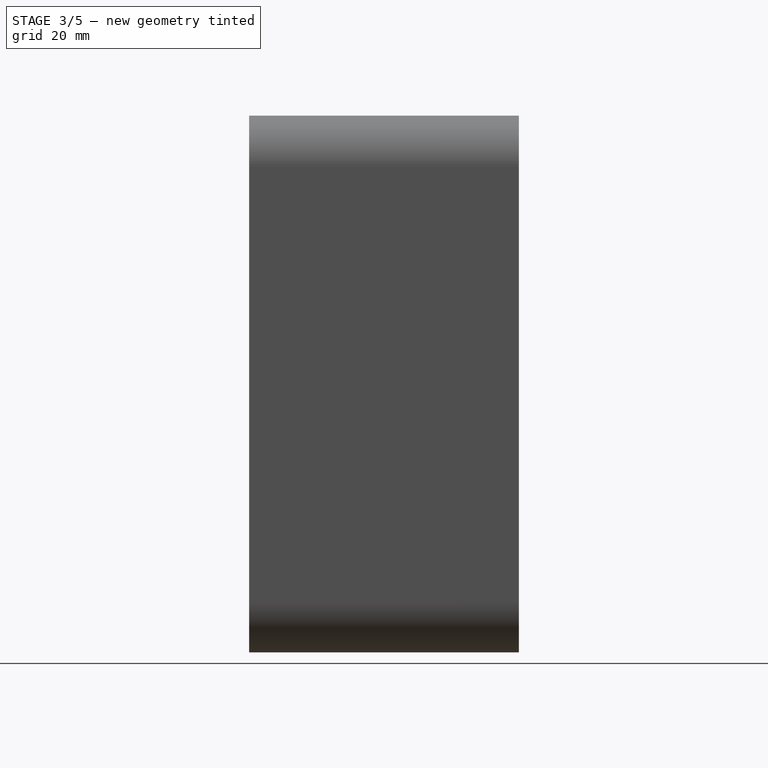
[diagram: stage 3 of 5 — right view after this stage's code; geometry added in this stage tinted green]
FEATURE [Part::Box] Box001  label="Cube001"
  AttacherType = Attacher::AttachEngine3D
  Height = 40
  Length = 25
  Placement = pos=(27,-3,12) rot=(0,0,1;0rad)
  Width = 3
FEATURE [Part::Cylinder] Cylinder
  Angle = 360
  AttacherType = Attacher::AttachEngine3D
  FirstAngle = 0
  Height = 3
  Placement = pos=(14.5,-7,3.5) rot=(-1,0,0;1.5708rad)
  Radius = 3.25
  SecondAngle = 0
FEATURE [Part::Cylinder] Cylinder001
  Angle = 360
  AttacherType = Attacher::AttachEngine3D
  FirstAngle = 0
  Height = 3
  Placement = pos=(63.5,-7,3.5) rot=(-1,0,0;1.5708rad)
  Radius = 3.25
  SecondAngle = 0
FEATURE [Part::Cylinder] Cylinder002
  Angle = 360
  AttacherType = Attacher::AttachEngine3D
  FirstAngle = 0
  Height = 3
  Placement = pos=(14.5,-7,3.5) rot=(-1,0,0;1.5708rad)
  Radius = 3.25
  SecondAngle = 0
FEATURE [Part::Cylinder] Cylinder003
  Angle = 360
  AttacherType = Attacher::AttachEngine3D
  FirstAngle = 0
  Height = 3
  Placement = pos=(63.5,-7,3.5) rot=(-1,0,0;1.5708rad)
  Radius = 3.25
  SecondAngle = 0
FEATURE [Part::MultiFuse] Fusion007
  Placement = pos=(0,0,58) rot=(0,0,1;0rad)
  Shapes = -> [Cylinder002,Cylinder003]
FEATURE [Part::Box] Box002  label="Cube002"
  AttacherType = Attacher::AttachEngine3D
  Height = 25
  Length = 5.8
  Placement = pos=(12.12,-7,5.12) rot=(-0.300549,0.945607,0.124491;0.825727rad)
  Width = 3
FEATURE [Part::Mirroring] Part__Mirroring  label="Cube002 (Mirror #1)"
  Base = (0,0,0)
  Normal = (0,0,1)
  Placement = pos=(0,0,65) rot=(0,0,1;0rad)
  Source = -> Box002
FEATURE [Part::MultiFuse] Fusion009
  Shapes = -> [Part__Mirroring,Box002]
FEATURE [Part::Mirroring] Part__Mirroring001  label="Fusion009 (Mirror #2)"
  Base = (0,0,0)
  Normal = (1,0,0)
  Placement = pos=(78,0,0) rot=(0,0,1;0rad)
  Source = -> Fusion009
FEATURE [Part::MultiFuse] Fusion010
  Shapes = -> [Fusion009,Part__Mirroring001]
FEATURE [Part::Feature] Part__Feature014  label="scd30"
  Placement = pos=(2,-8.5,11) rot=(0.57735,0.57735,0.57735;4.18879rad)
  shape: bbox 7.027 x 23.02 x 35.11 mm, 2292 faces, 25 solids (baked)
FEATURE [Part::Feature] Part__Feature033  label="ips7100"
  Placement = pos=(39,202,-9e-14) rot=(0,-0.707107,0.707107;3.14159rad)
  shape: bbox 48.14 x 44.14 x 13.72 mm, 1935 faces (baked)
FEATURE [Part::Box] Box004  label="Cube004"
  AttacherType = Attacher::AttachEngine3D
  Height = 17.78
  Length = 25.4
  Width = 3
FEATURE [Part::Cylinder] Cylinder008
  Angle = 360
  AttacherType = Attacher::AttachEngine3D
  FirstAngle = 0
  Height = 10
  Placement = pos=(2.54,0,2.54) rot=(1,0,0;1.5708rad)
  Radius = 1
  SecondAngle = 0
FEATURE [Part::Cylinder] Cylinder009
  Angle = 360
  AttacherType = Attacher::AttachEngine3D
  FirstAngle = 0
  Height = 10
  Placement = pos=(2.54,-27.63,15.24) rot=(1,0,0;1.5708rad)
  Radius = 1
  SecondAngle = 0
FEATURE [Part::MultiFuse] Fusion014
  Shapes = -> [Cylinder009,Cylinder008]
FEATURE [Part::MultiFuse] Fusion016
  Placement = pos=(0,3,0) rot=(0,0,1;0rad)
  Shapes = -> [Fusion015,Fusion014]
FEATURE [Part::Cut] Cut001
  Base = -> Box004
  Placement = pos=(71,-17.7,20.4) rot=(0.57735,-0.57735,-0.57735;4.18879rad)
  Tool = -> Fusion016
FEATURE [Part::Box] Box008  label="Cube008"
  AttacherType = Attacher::AttachEngine3D
  Height = 6
  Length = 30
  Placement = pos=(11,-3,16) rot=(0,0,1;0rad)
  Width = 3
FEATURE [Part::Box] Box009  label="Cube009"
  AttacherType = Attacher::AttachEngine3D
  Height = 6
  Length = 30
  Placement = pos=(41,-3,32) rot=(0,0,1;0rad)
  Width = 3
FEATURE [Part::Box] Box010  label="Cube010"
  AttacherType = Attacher::AttachEngine3D
  Height = 6
  Length = 27
  Placement = pos=(44,-3,12) rot=(0,0,1;0rad)
  Width = 3
  expr: .Placement.Base.z = 12
FEATURE [Part::Box] Box011  label="Cube011"
  AttacherType = Attacher::AttachEngine3D
  Height = 6.25
  Length = 8
  Placement = pos=(63,-7,0.3) rot=(0,0,1;0rad)
  Width = 3
FEATURE [Part::Box] Box012  label="Cube012"
  AttacherType = Attacher::AttachEngine3D
  Height = 6.25
  Length = 3
  Placement = pos=(11.5,-4,6.3) rot=(0,1,0;3.14159rad)
  Width = 3
FEATURE [Part::Box] Box013  label="Cube013"
  AttacherType = Attacher::AttachEngine3D
  Height = 6.25
  Length = 6
  Placement = pos=(14.5,-7,6.3) rot=(0,1,0;3.14159rad)
  Width = 3
FEATURE [Part::Cylinder] Cylinder017
  Angle = 360
  AttacherType = Attacher::AttachEngine3D
  FirstAngle = 0
  Height = 3
  Placement = pos=(11.5,-1.7,28.45) rot=(0.57735,0.57735,-0.57735;4.18879rad)
  Radius = 3.25
  SecondAngle = 0
FEATURE [Part::Cylinder] Cylinder018
  Angle = 360
  AttacherType = Attacher::AttachEngine3D
  FirstAngle = 0
  Height = 3
  Placement = pos=(11.5,-17.9,-3.55) rot=(0.57735,0.57735,-0.57735;4.18879rad)
  Radius = 3.25
  SecondAngle = 0
FEATURE [Part::MultiFuse] Fusion020
  Shapes = -> [Cylinder,Cylinder001]
FEATURE [Part::MultiFuse] Fusion021  label="m3Legs"
  Shapes = -> [Fusion020,Fusion007]
FEATURE [Part::MultiFuse] Fusion022  label="scdM2Supports"
  Shapes = -> [Cylinder018,Cylinder017]
FEATURE [Part::MultiFuse] Fusion023  label="base"
  Shapes = -> [Fusion010,Box001]
FEATURE [Part::MultiFuse] Fusion025  label="baseSuports"
  Shapes = -> [Box013,Box008,Box009,Box010,Box011,Box012]
FEATURE [Part::Fillet] Fillet010
  Base = -> Cut001
  Edges = 1 edges r=2: [Edge4]
  Placement = pos=(0,-0.08,0) rot=(0,0,1;0rad)
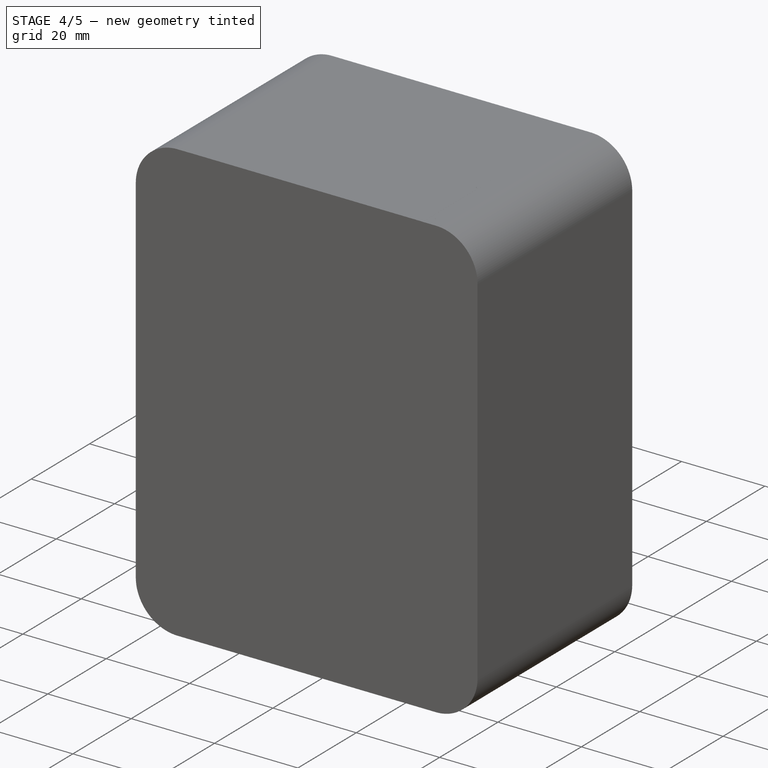
[diagram: stage 4 of 5 — iso view after this stage's code; geometry added in this stage tinted green]
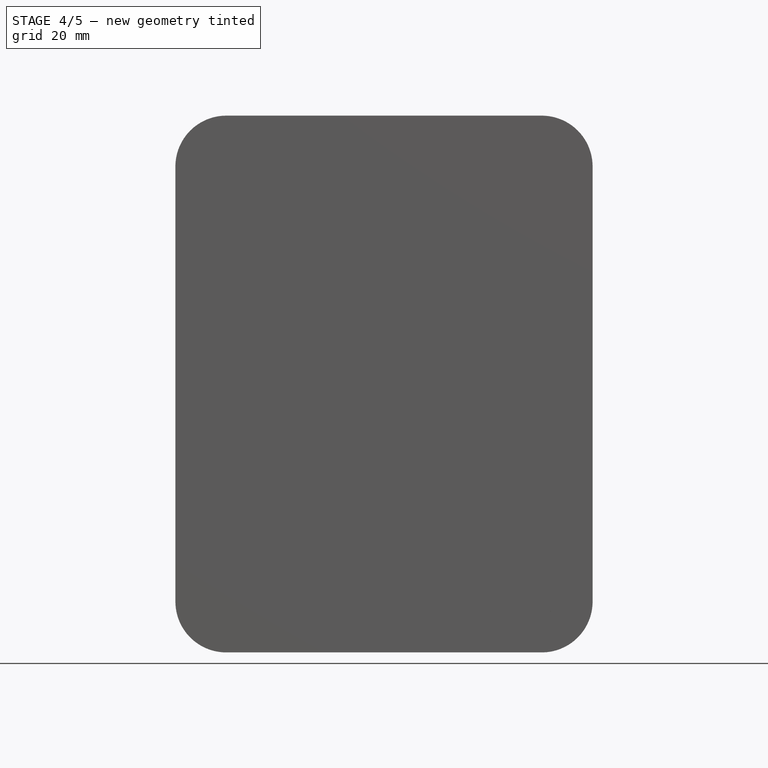
[diagram: stage 4 of 5 — front view after this stage's code; geometry added in this stage tinted green]
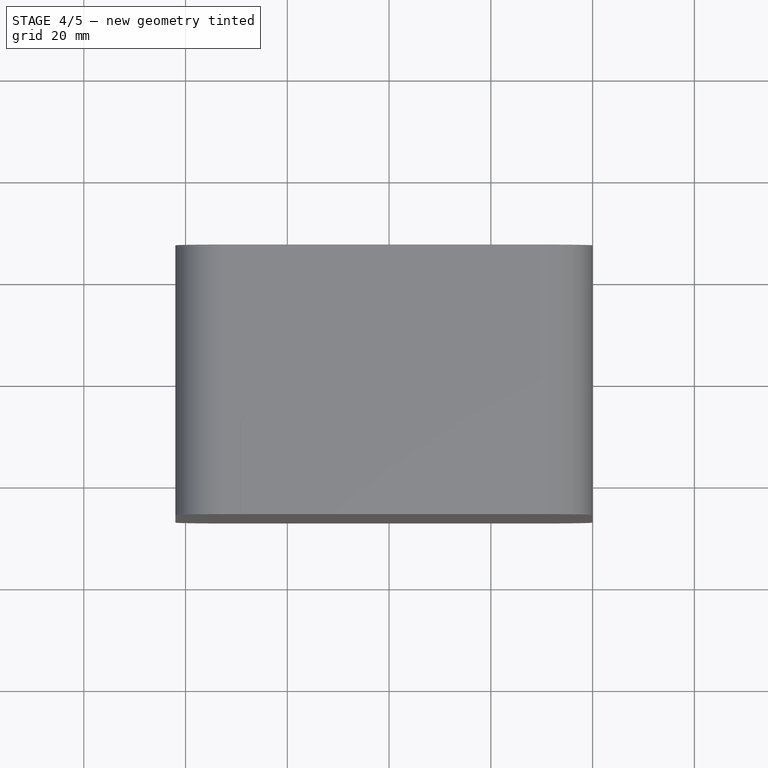
[diagram: stage 4 of 5 — top view after this stage's code; geometry added in this stage tinted green]
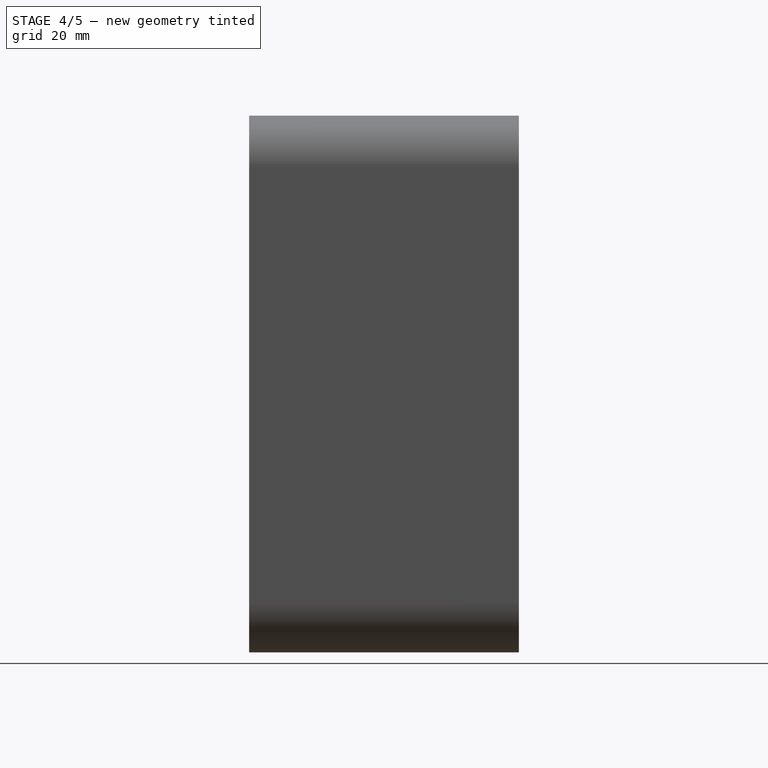
[diagram: stage 4 of 5 — right view after this stage's code; geometry added in this stage tinted green]
FEATURE [Part::Box] Box005  label="Cube005"
  AttacherType = Attacher::AttachEngine3D
  Height = 35
  Length = 3
  Placement = pos=(8,-19,-5) rot=(0,0,1;0rad)
  Width = 19
FEATURE [Part::Box] Box006  label="Cube006"
  AttacherType = Attacher::AttachEngine3D
  Height = 35
  Length = 3
  Placement = pos=(8,-22,-2) rot=(0,0,1;0rad)
  Width = 19
FEATURE [Part::Cut] Cut002
  Base = -> Box005
  Placement = pos=(0.5,0,0) rot=(0,0,1;0rad)
  Tool = -> Box006
FEATURE [Part::Box] Box007  label="Cube007"
  AttacherType = Attacher::AttachEngine3D
  Height = 17
  Length = 36.5
  Width = 3
FEATURE [Part::Cylinder] Cylinder012  label="m2s"
  Angle = 360
  AttacherType = Attacher::AttachEngine3D
  FirstAngle = 0
  Height = 10
  Placement = pos=(0,0,0) rot=(1,0,0;1.5708rad)
  Radius = 1.2
  SecondAngle = 0
FEATURE [Part::Cylinder] Cylinder014  label="m2s001"
  Angle = 360
  AttacherType = Attacher::AttachEngine3D
  FirstAngle = 0
  Height = 10
  Placement = pos=(30,0,0) rot=(1,0,0;1.5708rad)
  Radius = 1.2
  SecondAngle = 0
FEATURE [Part::MultiFuse] Fusion017
  Placement = pos=(3.25,0,0) rot=(0,0,1;0rad)
  Shapes = -> [Cylinder014,Cylinder012]
FEATURE [Part::Cylinder] Cylinder015  label="m2s002"
  Angle = 360
  AttacherType = Attacher::AttachEngine3D
  FirstAngle = 0
  Height = 10
  Placement = pos=(0,0,0) rot=(1,0,0;1.5708rad)
  Radius = 1.2
  SecondAngle = 0
FEATURE [Part::Cylinder] Cylinder016  label="m2s003"
  Angle = 360
  AttacherType = Attacher::AttachEngine3D
  FirstAngle = 0
  Height = 10
  Placement = pos=(30,0,0) rot=(1,0,0;1.5708rad)
  Radius = 1.2
  SecondAngle = 0
FEATURE [Part::MultiFuse] Fusion018
  Placement = pos=(3.25,0,7) rot=(0,0,1;0rad)
  Shapes = -> [Cylinder016,Cylinder015]
FEATURE [Part::MultiFuse] Fusion019
  Placement = pos=(0,3,5) rot=(0,0,1;0rad)
  Shapes = -> [Fusion017,Fusion018]
FEATURE [Part::Cut] Cut003
  Base = -> Box007
  Tool = -> Fusion019
FEATURE [Part::Fillet] Fillet008  label="converterSupport"
  Base = -> Cut003
  Edges = 4 edges r=2: [Edge2,Edge4,Edge13,Edge20]
  Placement = pos=(68,-17,23) rot=(0.57735,0.57735,0.57735;4.18879rad)
FEATURE [Part::Cylinder] Cylinder019
  Angle = 360
  AttacherType = Attacher::AttachEngine3D
  FirstAngle = 0
  Height = 6
  Placement = pos=(14.5,-7,3.5) rot=(-1,0,0;1.5708rad)
  Radius = 1.6
  SecondAngle = 0
FEATURE [Part::Cylinder] Cylinder020
  Angle = 360
  AttacherType = Attacher::AttachEngine3D
  FirstAngle = 0
  Height = 6
  Placement = pos=(63.5,-7,3.5) rot=(-1,0,0;1.5708rad)
  Radius = 1.6
  SecondAngle = 0
FEATURE [Part::MultiFuse] Fusion028
  Shapes = -> [Cylinder019,Cylinder020]
FEATURE [Part::Cylinder] Cylinder023
  Angle = 360
  AttacherType = Attacher::AttachEngine3D
  FirstAngle = 0
  Height = 7
  Placement = pos=(14.5,-7,3.5) rot=(-1,0,0;1.5708rad)
  Radius = 3.25
  SecondAngle = 0
FEATURE [Part::Cylinder] Cylinder024
  Angle = 360
  AttacherType = Attacher::AttachEngine3D
  FirstAngle = 0
  Height = 3
  Placement = pos=(63.5,-7,3.5) rot=(-1,0,0;1.5708rad)
  Radius = 3.25
  SecondAngle = 0
FEATURE [Part::Cylinder] Cylinder025
  Angle = 360
  AttacherType = Attacher::AttachEngine3D
  FirstAngle = 0
  Height = 3
  Placement = pos=(14.5,-7,3.5) rot=(-1,0,0;1.5708rad)
  Radius = 3.25
  SecondAngle = 0
FEATURE [Part::Cylinder] Cylinder026
  Angle = 360
  AttacherType = Attacher::AttachEngine3D
  FirstAngle = 0
  Height = 3
  Placement = pos=(63.5,-7,3.5) rot=(-1,0,0;1.5708rad)
  Radius = 3.25
  SecondAngle = 0
FEATURE [Part::MultiFuse] Fusion030
  Placement = pos=(0,0,58) rot=(0,0,1;0rad)
  Shapes = -> [Cylinder025,Cylinder026]
FEATURE [Part::MultiFuse] Fusion031
  Shapes = -> [Cylinder023,Cylinder024]
FEATURE [Part::MultiFuse] Fusion032  label="m3Cuts001"
  Placement = pos=(0,3.05,0) rot=(0,0,1;0rad)
  Shapes = -> [Fusion031,Fusion030]
FEATURE [Part::Box] Box014  label="baseCut"
  AttacherType = Attacher::AttachEngine3D
  Height = 47
  Length = 46
  Placement = pos=(16,0,9) rot=(0,0,1;0rad)
  Width = 3
FEATURE [Part::Cylinder] Cylinder027
  Angle = 360
  AttacherType = Attacher::AttachEngine3D
  FirstAngle = 0
  Height = 6
  Placement = pos=(11.5,-1.7,28.45) rot=(0.57735,0.57735,-0.57735;4.18879rad)
  Radius = 1.2
  SecondAngle = 0
FEATURE [Part::Cylinder] Cylinder028
  Angle = 360
  AttacherType = Attacher::AttachEngine3D
  FirstAngle = 0
  Height = 6
  Placement = pos=(11.5,-17.9,-3.55) rot=(0.57735,0.57735,-0.57735;4.18879rad)
  Radius = 1.2
  SecondAngle = 0
FEATURE [Part::MultiFuse] Fusion033  label="scdM2Cuts"
  Shapes = -> [Cylinder028,Cylinder027]
FEATURE [Part::Cylinder] Cylinder029
  Angle = 360
  AttacherType = Attacher::AttachEngine3D
  FirstAngle = 0
  Height = 6
  Placement = pos=(9.09,-4.25,29) rot=(0.57735,0.57735,-0.57735;4.18879rad)
  Radius = 1.1
  SecondAngle = 0
FEATURE [Part::Fillet] Fillet009  label="scdCut"
  Base = -> Cylinder029
  Edges = 1 edges r=0.5: [Edge2]
FEATURE [Part::MultiFuse] Fusion035  label="base001"
  Shapes = -> [Fillet010,Fusion025,Fusion023,Fusion022,Fusion021,Fillet008,Cut002]
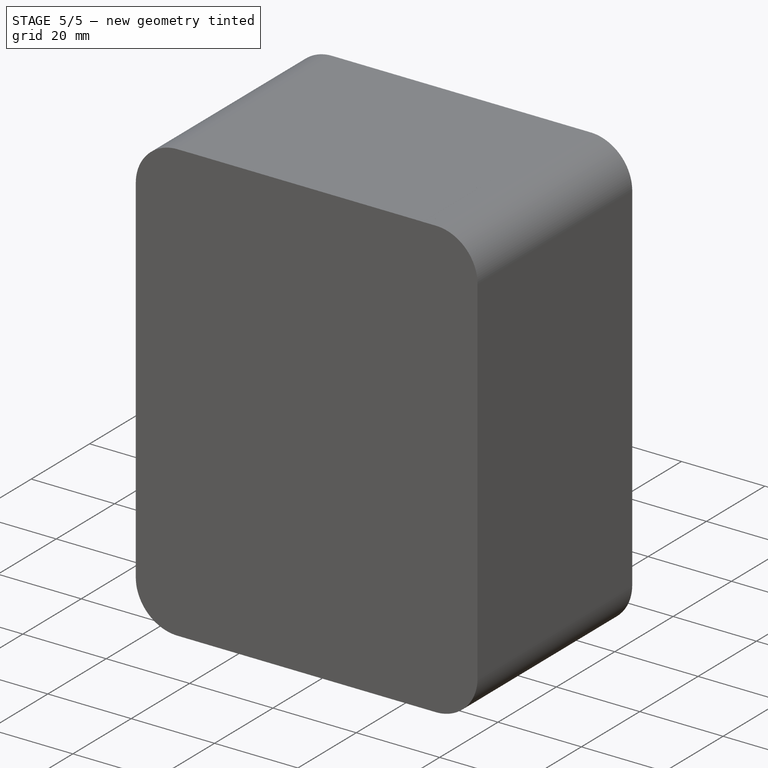
[diagram: stage 5 of 5 — iso view after this stage's code; geometry added in this stage tinted green]
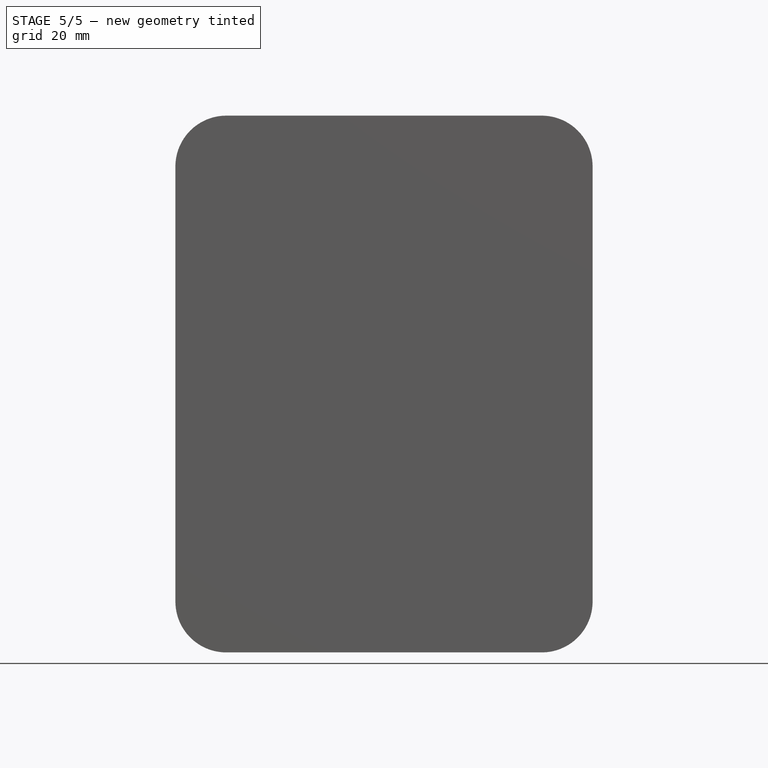
[diagram: stage 5 of 5 — front view after this stage's code; geometry added in this stage tinted green]
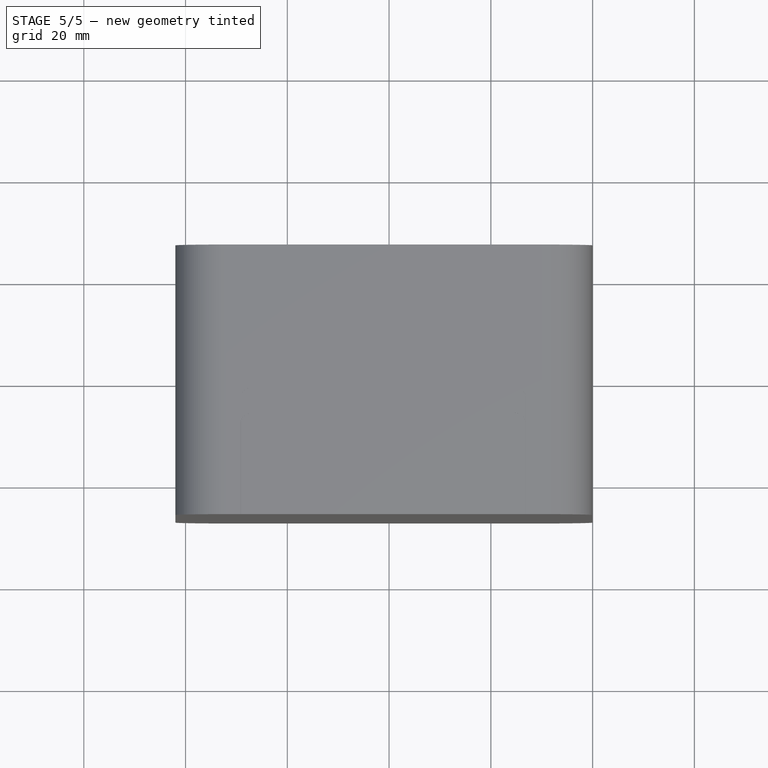
[diagram: stage 5 of 5 — top view after this stage's code; geometry added in this stage tinted green]
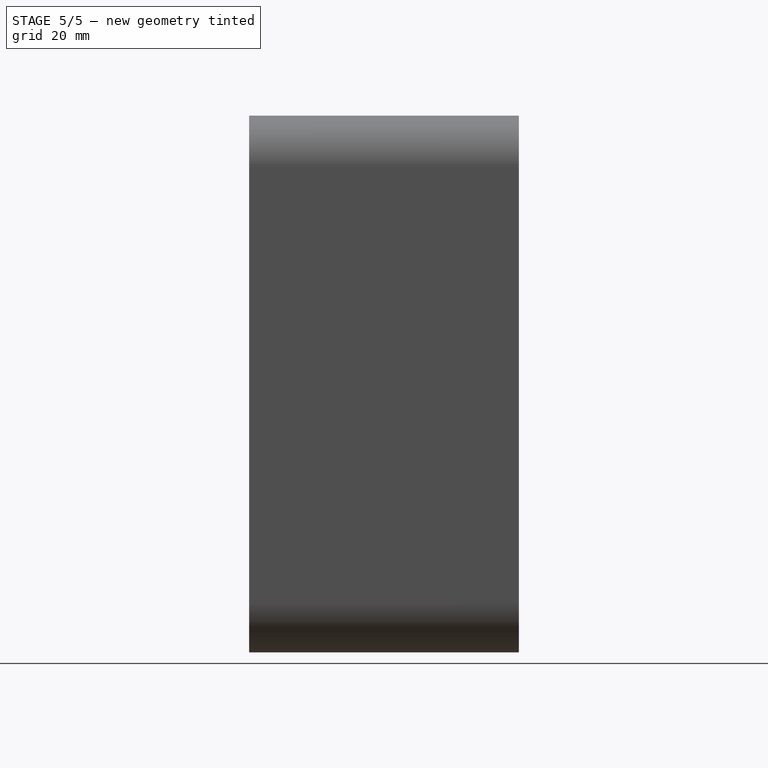
[diagram: stage 5 of 5 — right view after this stage's code; geometry added in this stage tinted green]
FEATURE [Part::Feature] Part__Feature  label="2_BAT_1_1"
  shape: bbox 14.52 x 64.97 x 15.41 mm, 79 faces (baked)
FEATURE [Part::Feature] Part__Feature001  label="2_C_1_1"
  shape: bbox 73.62 x 34.12 x 73.84 mm, 562 faces (baked)
FEATURE [Part::Feature] Part__Feature002  label="2_A_1_1"
  shape: bbox 73.61 x 58.23 x 73.83 mm, 215 faces (baked)
FEATURE [Part::Feature] Part__Feature003  label="2_B_2_1"
  shape: bbox 78.1 x 64.8 x 77.53 mm, 719 faces (baked)
FEATURE [Part::MultiFuse] Fusion
  Shapes = -> [Part__Feature003,Part__Feature002]
FEATURE [Part::MultiFuse] Fusion001
  Shapes = -> [Part__Feature001,Part__Feature]
FEATURE [Part::MultiFuse] Fusion002  label="V25"
  Placement = pos=(39,12,38) rot=(0,0,1;3.14159rad)
  Shapes = -> [Fusion001,Fusion]
FEATURE [Part::Feature] Part__Feature004  label="Open CASCADE STEP translator 7.4 2.1.1"
  shape: bbox 8.3 x 1.9 x 1 mm, 10 faces, 0 solids (baked)
FEATURE [Part::Feature] Part__Feature005  label="Open CASCADE STEP translator 7.4 2.1.2"
  shape: bbox 12.5 x 10 x 1.5 mm, 6 faces, 0 solids (baked)
FEATURE [Part::Feature] Part__Feature006  label="Open CASCADE STEP translator 7.4 2.1.3"
  shape: bbox 12.5 x 10 x 1.5 mm, 6 faces, 0 solids (baked)
FEATURE [Part::Feature] Part__Feature007  label="Open CASCADE STEP translator 7.4 2.1.4"
  shape: bbox 12.5 x 10 x 1.5 mm, 6 faces, 0 solids (baked)
FEATURE [Part::Feature] Part__Feature008  label="Open CASCADE STEP translator 7.4 2.1.5"
  shape: bbox 12.5 x 10 x 1.5 mm, 6 faces, 0 solids (baked)
FEATURE [Part::Feature] Part__Feature009  label="Open CASCADE STEP translator 7.4 2.1.6"
  shape: bbox 89.5 x 57.1 x 20.65 mm, 2741 faces, 0 solids (baked)
FEATURE [App::Part] Open_CASCADE_STEP_translator_7_4_2_1  label="Open CASCADE STEP translator 7.4 2.1"
  Group = -> [Part__Feature004,Part__Feature005,Part__Feature006,Part__Feature007,Part__Feature008,Part__Feature009]
  Origin = -> Origin
FEATURE [App::Part] Open_CASCADE_STEP_translator_7_4_2  label="C4"
  Group = -> [Open_CASCADE_STEP_translator_7_4_2_1]
  Origin = -> Origin001
  Placement = pos=(67,-7,0) rot=(0.57735,-0.57735,0.57735;2.0944rad)
FEATURE [Part::Box] Box  label="Cube"
  AttacherType = Attacher::AttachEngine3D
  Height = 77
  Length = 78
  Width = 10
FEATURE [Part::Feature] Part__Feature010  label="m312mm"
  Placement = pos=(63.5,-7,61.5) rot=(0,0.707107,0.707107;3.14159rad)
  shape: bbox 6.201 x 15.54 x 6.201 mm, 70 faces (baked)
FEATURE [Part::Feature] Part__Feature011  label="m312mm001"
  Placement = pos=(14.5,-7,61.5) rot=(-1,0,0;1.5708rad)
  shape: bbox 6.201 x 15.54 x 6.201 mm, 70 faces (baked)
FEATURE [Part::MultiFuse] Fusion003
  Shapes = -> [Part__Feature011,Part__Feature010]
FEATURE [Part::Feature] Part__Feature012  label="m312mm002"
  Placement = pos=(14.5,-7,61.5) rot=(-1,0,0;1.5708rad)
  shape: bbox 6.201 x 15.54 x 6.201 mm, 70 faces (baked)
FEATURE [Part::Feature] Part__Feature013  label="m312mm003"
  Placement = pos=(63.5,-7,61.5) rot=(0,0.707107,0.707107;3.14159rad)
  shape: bbox 6.201 x 15.54 x 6.201 mm, 70 faces (baked)
FEATURE [Part::MultiFuse] Fusion004
  Placement = pos=(0,0,-58) rot=(0,0,1;0rad)
  Shapes = -> [Part__Feature012,Part__Feature013]
FEATURE [Part::MultiFuse] Fusion005  label="m3s"
  Placement = pos=(0.1,-1,0) rot=(0,0,1;0rad)
  Shapes = -> [Fusion004,Fusion003]
FEATURE [Part::Box] Box003  label="Cube003"
  AttacherType = Attacher::AttachEngine3D
  Height = 17.78
  Length = 25.4
  Width = 3
FEATURE [Part::Cylinder] Cylinder004
  Angle = 360
  AttacherType = Attacher::AttachEngine3D
  FirstAngle = 0
  Height = 10
  Placement = pos=(2.54,0,2.54) rot=(1,0,0;1.5708rad)
  Radius = 1
  SecondAngle = 0
FEATURE [Part::Cylinder] Cylinder005
  Angle = 360
  AttacherType = Attacher::AttachEngine3D
  FirstAngle = 0
  Height = 10
  Placement = pos=(2.54,0,15.24) rot=(1,0,0;1.5708rad)
  Radius = 1
  SecondAngle = 0
FEATURE [Part::MultiFuse] Fusion011
  Shapes = -> [Cylinder005,Cylinder004]
FEATURE [Part::Cylinder] Cylinder006
  Angle = 360
  AttacherType = Attacher::AttachEngine3D
  FirstAngle = 0
  Height = 10
  Placement = pos=(2.54,0,2.54) rot=(1,0,0;1.5708rad)
  Radius = 1
  SecondAngle = 0
FEATURE [Part::Cylinder] Cylinder007
  Angle = 360
  AttacherType = Attacher::AttachEngine3D
  FirstAngle = 0
  Height = 10
  Placement = pos=(2.54,0,15.24) rot=(1,0,0;1.5708rad)
  Radius = 1
  SecondAngle = 0
FEATURE [Part::MultiFuse] Fusion012
  Placement = pos=(20.32,0,0) rot=(0,0,1;0rad)
  Shapes = -> [Cylinder007,Cylinder006]
FEATURE [Part::MultiFuse] Fusion013
  Placement = pos=(0,3,0) rot=(0,0,1;0rad)
  Shapes = -> [Fusion012,Fusion011]
FEATURE [Part::Cut] Cut
  Base = -> Box003
  Tool = -> Fusion013
FEATURE [Part::Fillet] Fillet
  Base = -> Cut
  Edges = 1 edges r=2: [Edge2]
FEATURE [Part::Fillet] Fillet001
  Base = -> Fillet
  Edges = 1 edges r=2: [Edge2]
FEATURE [Part::Fillet] Fillet002
  Base = -> Fillet001
  Edges = 1 edges r=2: [Edge25]
FEATURE [Part::Fillet] Fillet003  label="bme280AdaFruit"
  Base = -> Fillet002
  Edges = 1 edges r=2: [Edge14]
  Placement = pos=(71,-17.75,-5) rot=(0.57735,0.57735,0.57735;4.18879rad)
FEATURE [Part::Cylinder] Cylinder021
  Angle = 360
  AttacherType = Attacher::AttachEngine3D
  FirstAngle = 0
  Height = 6
  Placement = pos=(14.5,-7,3.5) rot=(-1,0,0;1.5708rad)
  Radius = 1.6
  SecondAngle = 0
FEATURE [Part::Cylinder] Cylinder022
  Angle = 360
  AttacherType = Attacher::AttachEngine3D
  FirstAngle = 0
  Height = 6
  Placement = pos=(63.5,-7,3.5) rot=(-1,0,0;1.5708rad)
  Radius = 1.6
  SecondAngle = 0
FEATURE [Part::MultiFuse] Fusion027
  Placement = pos=(0,0,58) rot=(0,0,1;0rad)
  Shapes = -> [Cylinder021,Cylinder022]
FEATURE [Part::MultiFuse] Fusion029  label="m3Cuts"
  Shapes = -> [Fusion028,Fusion027]
FEATURE [Part::MultiFuse] Fusion034  label="baseCuts"
  Shapes = -> [Fusion029,Fusion032,Box014,Fusion033,Fillet009]
FEATURE [Part::Cut] Cut004  label="base002"
  Base = -> Fusion035
  Tool = -> Fusion034
FEATURE [Part::Fillet] Fillet011
  Base = -> Cut004
  Edges = 13 edges r=0.9: [Edge25,Edge26,Edge27,Edge31,Edge32,Edge33,Edge34,Edge146,Edge205,Edge206,Edge275,Edge281,Edge486]
FEATURE [Part::Fillet] Fillet012
  Base = -> Fillet011
  Edges = 18 edges r=0.2: [Edge67,Edge76,Edge111,Edge140,Edge195,Edge199,Edge200,Edge203,Edge204,Edge207,Edge208,Edge249,Edge292,Edge327,Edge332,Edge335,Edge386,Edge459]
FEATURE [Part::Cut] Cut005  label="base003"
  Base = -> Fillet012
  Tool = -> Box
FEATURE [Part::Fillet] Fillet013  label="base004"
  Base = -> Cut005
  Edges = 2 edges r=1: [Edge497,Edge518]
FEATURE [Part::Fillet] Fillet014  label="c4Support"
  Base = -> Fillet013
  Edges = 3 edges: [Edge571 r=1,Edge596 r=2,Edge599 r=2]
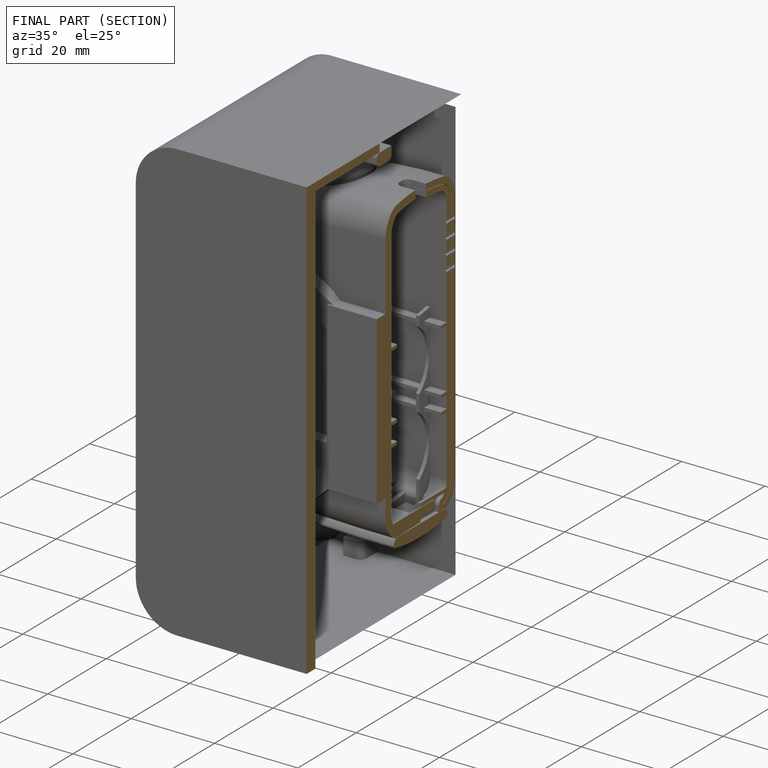
[diagram: finished part — half-section view (interior)]
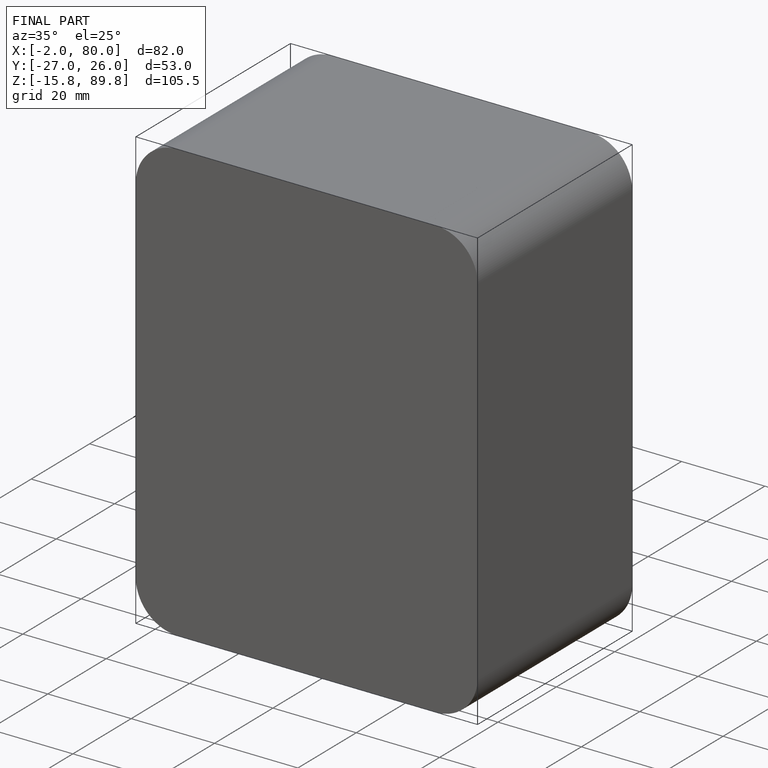
[diagram: finished part — iso view with bounding-box wireframe]
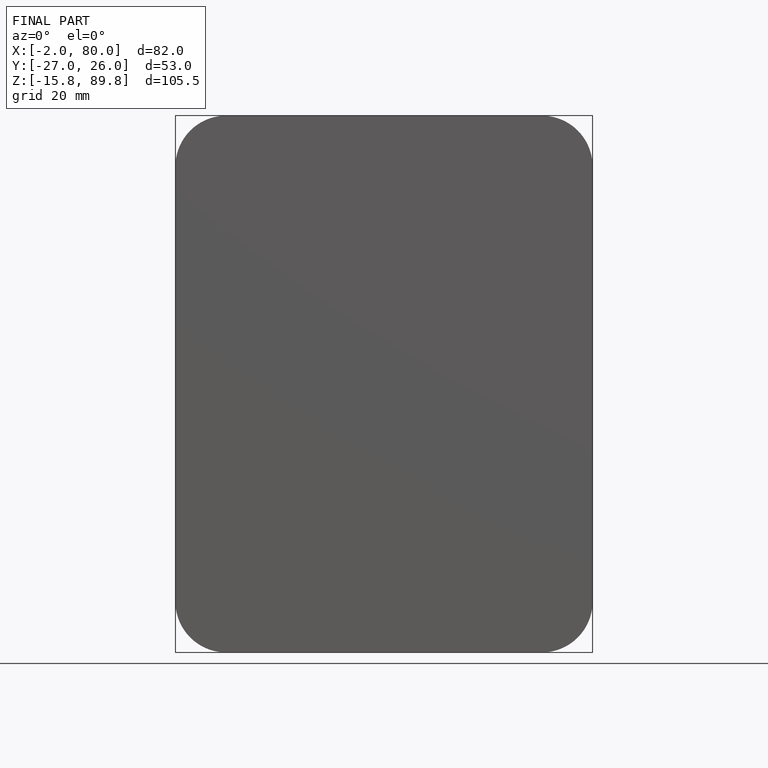
[diagram: finished part — front view with bounding-box wireframe]
